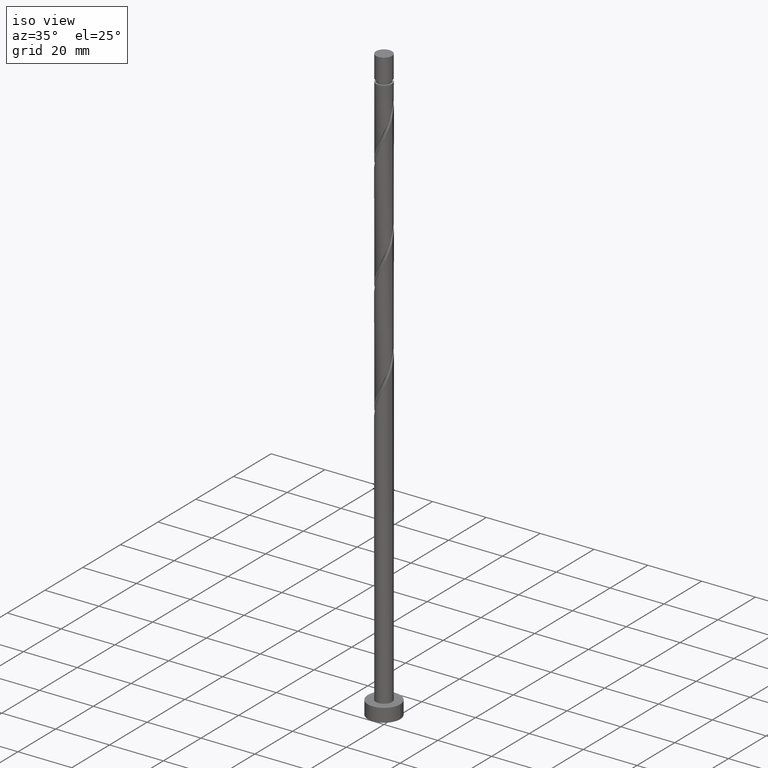
[diagram: clean part render]
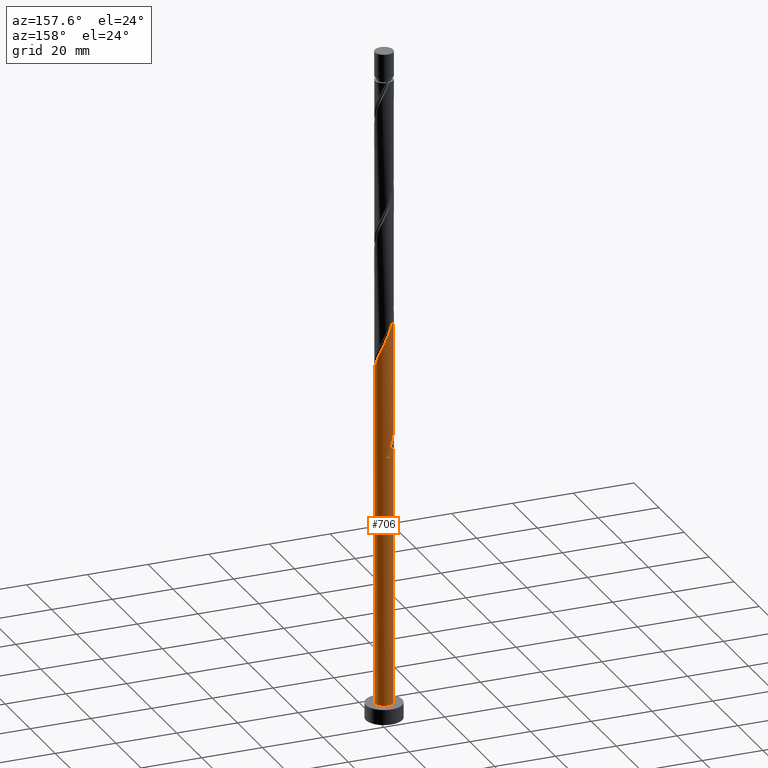
[diagram: tour spotlight — one face highlighted and labeled with its STEP entity id]
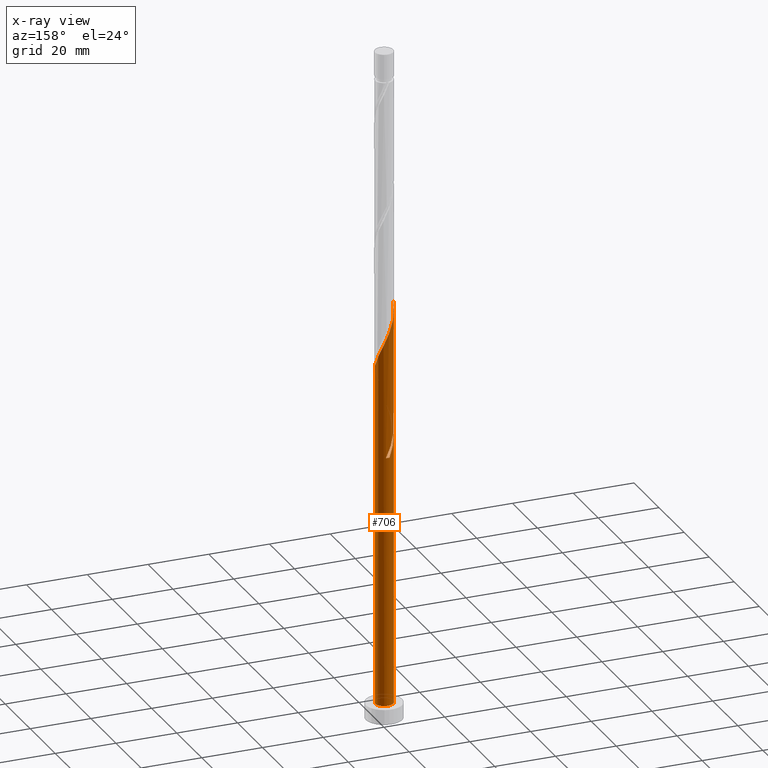
[diagram: x-ray of the same camera — body ghosted, this tour face saturated]
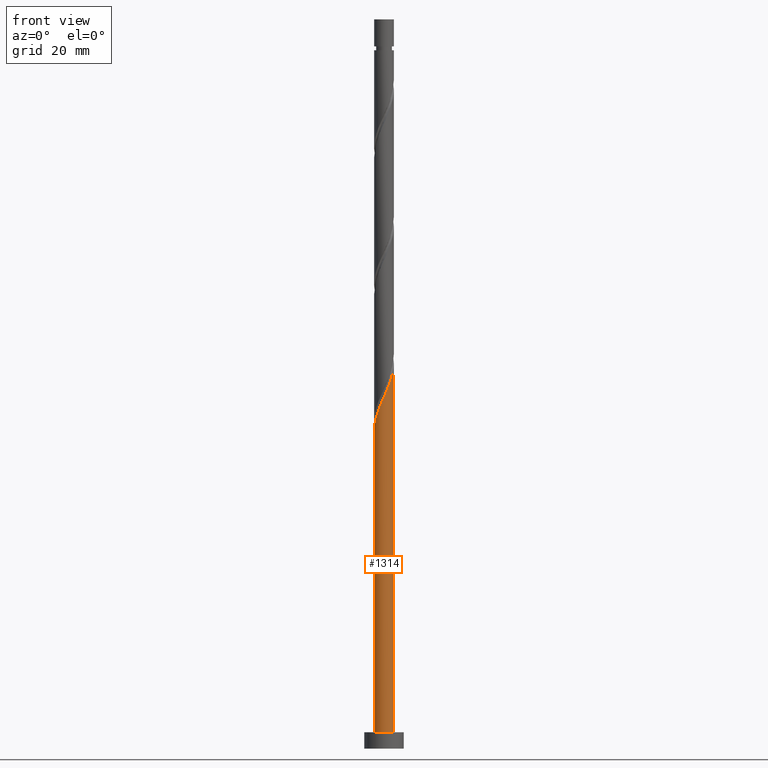
[diagram: tour spotlight — one face highlighted and labeled with its STEP entity id]
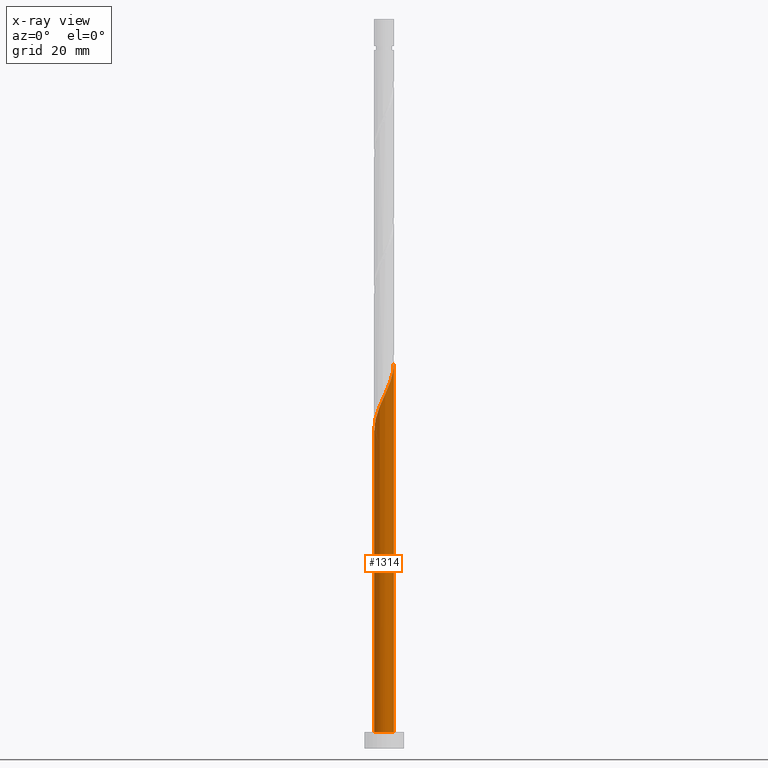
[diagram: x-ray of the same camera — body ghosted, this tour face saturated]
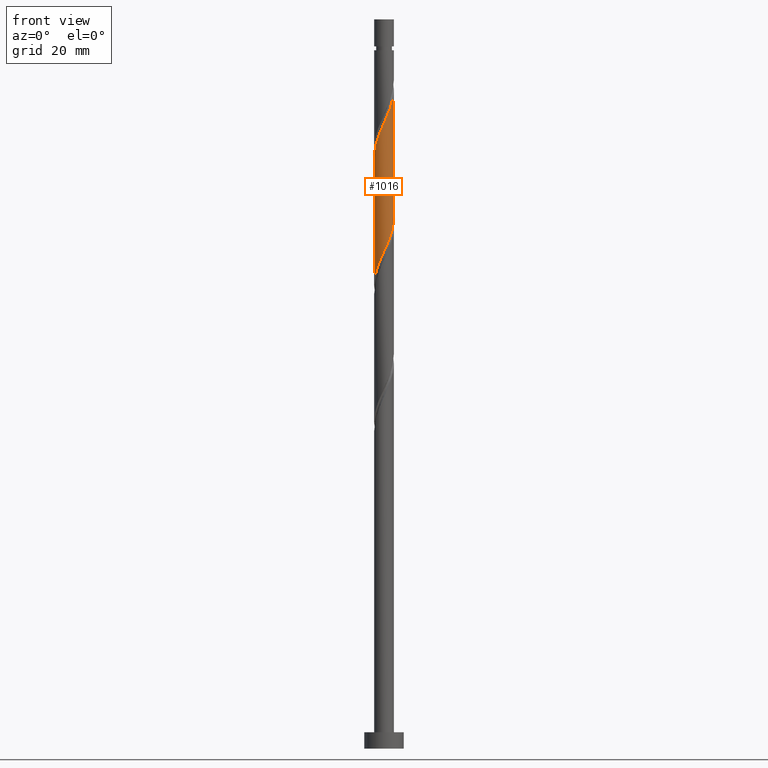
[diagram: tour spotlight — one face highlighted and labeled with its STEP entity id]
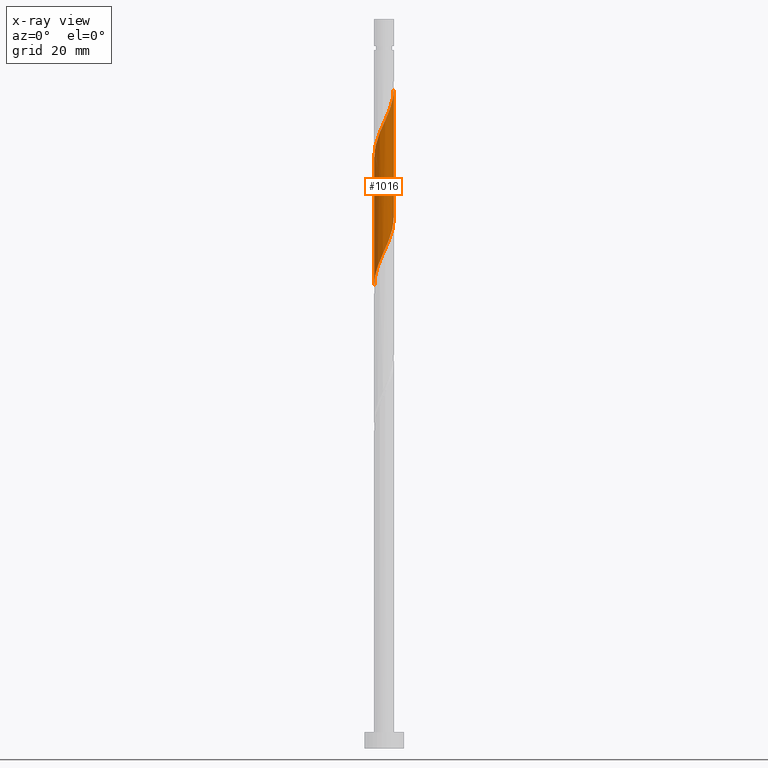
[diagram: x-ray of the same camera — body ghosted, this tour face saturated]
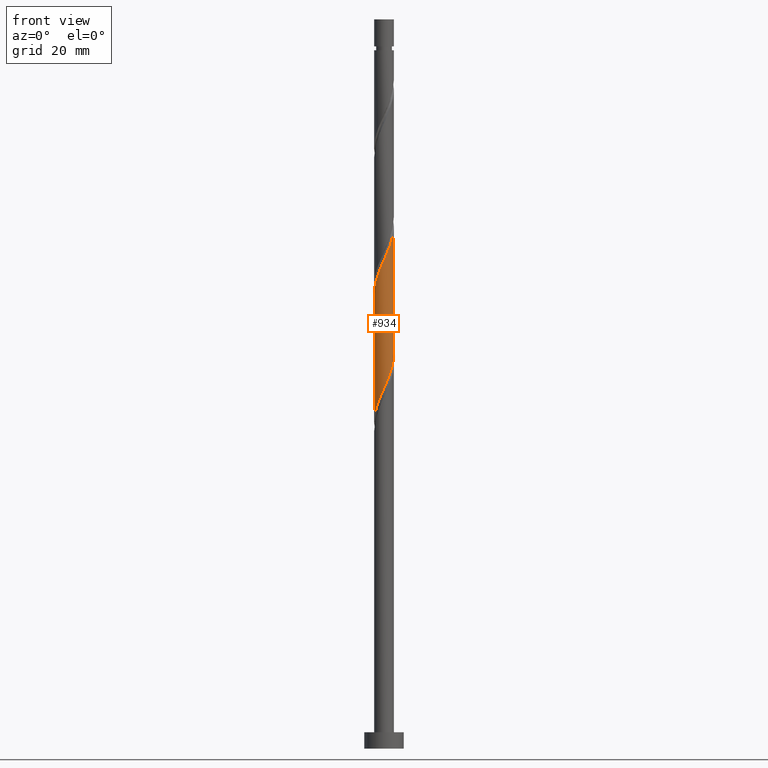
[diagram: tour spotlight — one face highlighted and labeled with its STEP entity id]
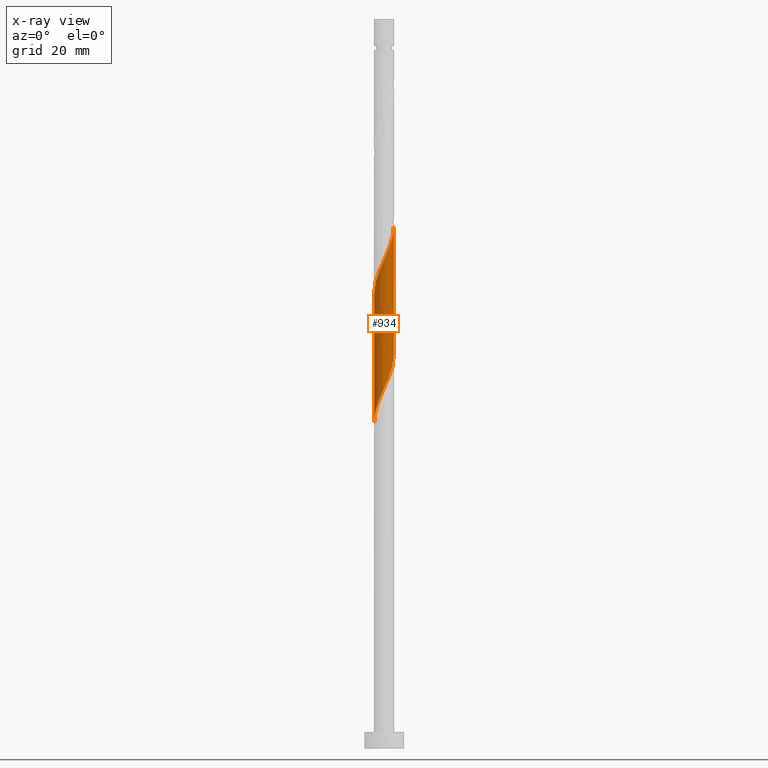
[diagram: x-ray of the same camera — body ghosted, this tour face saturated]
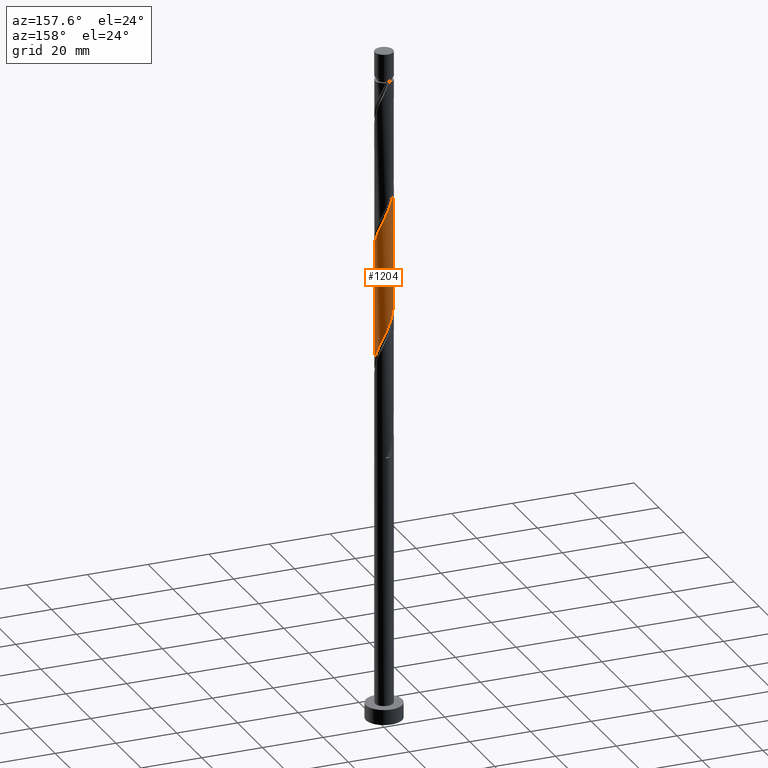
[diagram: tour spotlight — one face highlighted and labeled with its STEP entity id]
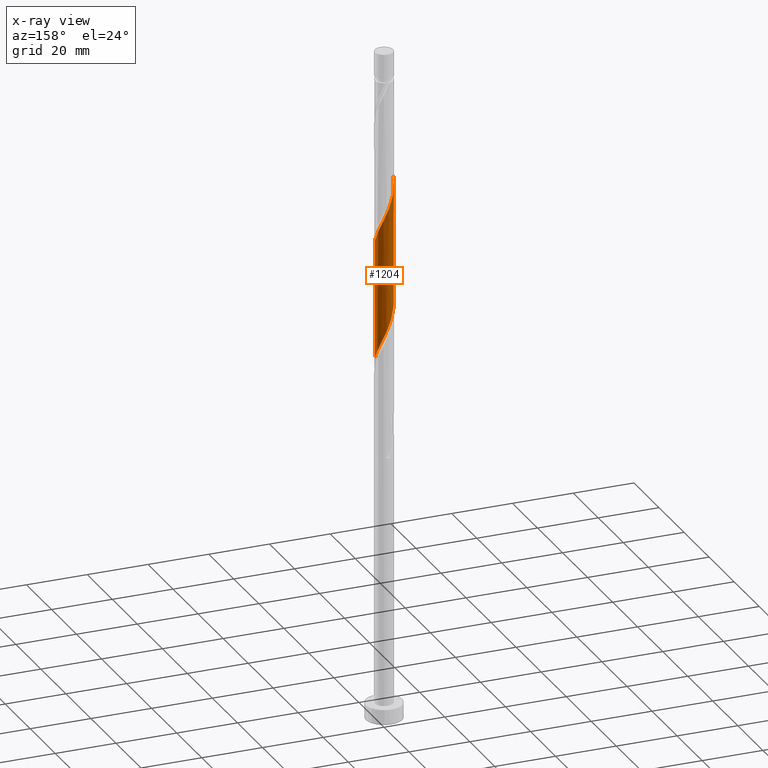
[diagram: x-ray of the same camera — body ghosted, this tour face saturated]
A machine part: a face-by-face anatomy tour. The part has 21 B-rep faces; the first image is the clean iso view, then the 5 largest visible faces are spotlighted one at a time (largest first), each with its STEP entity span.

Face 1 — auxiliary view, entity #706. An x-ray twin of the same camera follows (body ghosted, this face saturated) — the face is partly hidden behind the body. In plain terms, the highlighted cylindrical surface (edge-blend (fillet) strip) has radius 3 mm, axis along (-0, -0, -1).
Definition (entity closure, byte-faithful):
#1 = CARTESIAN_POINT ( 'NONE',  ( 0.8376755528275025009, 2.880676946169974606, 126.0351902960103700 ) ) ;
#9 = CARTESIAN_POINT ( 'NONE',  ( -3.000000000000000444, 0.000000000000000000, 222.0000000000000000 ) ) ;
#17 = CARTESIAN_POINT ( 'NONE',  ( 2.846604600309534661, 0.9470175550097423844, 119.6249338857539755 ) ) ;
#27 = CARTESIAN_POINT ( 'NONE',  ( 3.000000000000004885, 5.982375413314625923E-16, 117.4957299585800143 ) ) ;
#37 = CIRCLE ( 'NONE', #316, 3.000000000000000444 ) ;
#49 = CARTESIAN_POINT ( 'NONE',  ( -1.817997620638345913, 2.414036937049628406, 93.18262619344626785 ) ) ;
#63 = CARTESIAN_POINT ( 'NONE',  ( -2.999999999999999112, -6.072111044514400680E-15, 99.31824037703046315 ) ) ;
#68 = VERTEX_POINT ( 'NONE', #755 ) ;
#73 = CARTESIAN_POINT ( 'NONE',  ( -0.5969924622639725120, 2.940000000000005720, 87.57365183447191725 ) ) ;
#76 = CARTESIAN_POINT ( 'NONE',  ( -2.177300491905833191, 2.095722369502529325, 91.58006209088216565 ) ) ;
#87 = CARTESIAN_POINT ( 'NONE',  ( 2.537251308848763820, 1.600736016882631008, 121.2274979883180634 ) ) ;
#126 = CIRCLE ( 'NONE', #549, 3.000000000000000444 ) ;
#133 = CARTESIAN_POINT ( 'NONE',  ( -2.758702937603747074, 1.178795190886224198, 93.98390824472834026 ) ) ;
#143 = VERTEX_POINT ( 'NONE', #483 ) ;
#152 = DIRECTION ( 'NONE',  ( -0.000000000000000000, -0.000000000000000000, -1.000000000000000000 ) ) ;
#188 = LINE ( 'NONE', #1563, #1636 ) ;
#193 = CARTESIAN_POINT ( 'NONE',  ( 0.000000000000000000, 0.000000000000000000, 87.57365183447191725 ) ) ;
#200 = CARTESIAN_POINT ( 'NONE',  ( -1.187453060654100501, 2.778964719248851356, 91.58006209088216565 ) ) ;
#215 = CARTESIAN_POINT ( 'NONE',  ( -1.894896698789863665, 2.325804484670909389, 90.77878003960013586 ) ) ;
#246 = CYLINDRICAL_SURFACE ( 'NONE', #1402, 3.000000000000000444 ) ;
#274 = CARTESIAN_POINT ( 'NONE',  ( -1.283232999305657263, 2.711699295551230016, 130.8428826037026909 ) ) ;
#284 = CARTESIAN_POINT ( 'NONE',  ( 1.502725340646228647, 2.596500828149243656, 124.4326261934462536 ) ) ;
#295 = CARTESIAN_POINT ( 'NONE',  ( -1.894896698789863665, 2.325804484670909389, 132.4454467062668073 ) ) ;
#316 = AXIS2_PLACEMENT_3D ( 'NONE', #1202, #1629, #784 ) ;
#351 = CARTESIAN_POINT ( 'NONE',  ( -2.846604600309527111, 0.9470175550097436057, 97.18903644985653045 ) ) ;
#418 = CARTESIAN_POINT ( 'NONE',  ( -0.9539730929374198309, 2.867511991263172799, 130.0416005524206469 ) ) ;
#437 = ORIENTED_EDGE ( 'NONE', *, *, #1415, .F. ) ;
#438 = CARTESIAN_POINT ( 'NONE',  ( -0.5969924622639726230, 2.940000000000005720, 129.2403185011386029 ) ) ;
#452 = CARTESIAN_POINT ( 'NONE',  ( 2.731615850633954068, 1.292657931028937224, 120.4262159370360195 ) ) ;
#480 = CARTESIAN_POINT ( 'NONE',  ( -3.000000000000004441, 0.2437693156111475079, 137.7893625545649741 ) ) ;
#483 = CARTESIAN_POINT ( 'NONE',  ( 3.000000000000004885, 5.982375413314625923E-16, 117.4957299585800143 ) ) ;
#501 = CARTESIAN_POINT ( 'NONE',  ( -2.960644198141486605, 0.4843407189274826496, 137.2531390139590712 ) ) ;
#502 = CARTESIAN_POINT ( 'NONE',  ( -1.502725340646223762, 2.596500828149240547, 92.38134414216425228 ) ) ;
#506 = CARTESIAN_POINT ( 'NONE',  ( -2.758702937603747074, 1.178795190886224198, 135.6505749113949832 ) ) ;
#511 = VERTEX_POINT ( 'NONE', #1228 ) ;
#512 = CARTESIAN_POINT ( 'NONE',  ( -2.990523579387028619, 0.2382618751084440989, 98.79160055242063265 ) ) ;
#549 = AXIS2_PLACEMENT_3D ( 'NONE', #193, #1178, #1325 ) ;
#553 = EDGE_CURVE ( 'NONE', #1654, #1619, #126, .T. ) ;
#571 = CARTESIAN_POINT ( 'NONE',  ( -1.612492905673894361, 2.555886599839288120, 131.6441646549847349 ) ) ;
#583 = CARTESIAN_POINT ( 'NONE',  ( 3.000000000000004441, 0.1193193910103063360, 117.7599008742129740 ) ) ;
#607 = EDGE_CURVE ( 'NONE', #143, #1739, #839, .T. ) ;
#619 = CARTESIAN_POINT ( 'NONE',  ( -0.4878980450008949532, 2.982389173091087198, 89.97749798831804924 ) ) ;
#626 = CARTESIAN_POINT ( 'NONE',  ( -2.615571287713478466, 1.513762372691146663, 134.8492928601129108 ) ) ;
#630 = CARTESIAN_POINT ( 'NONE',  ( 0.5969924622639735112, 2.939999999999999947, 87.57365183447191725 ) ) ;
#645 = CARTESIAN_POINT ( 'NONE',  ( 0.2400118315905267752, 3.012488008736830647, 88.37493388575394704 ) ) ;
#648 = CARTESIAN_POINT ( 'NONE',  ( -2.396435889809655606, 1.804742371096838216, 92.38134414216423806 ) ) ;
#656 = CARTESIAN_POINT ( 'NONE',  ( 2.342886767063573572, 1.908814102736323237, 122.0287800396001217 ) ) ;
#687 = LINE ( 'NONE', #1658, #1815 ) ;
#703 = CARTESIAN_POINT ( 'NONE',  ( 0.1239431067051879054, 2.997438590913966472, 127.6377543985744722 ) ) ;
#706 = ADVANCED_FACE ( 'NONE', ( #1358 ), #246, .T. ) ;
#727 = DIRECTION ( 'NONE',  ( -0.000000000000000000, -0.000000000000000000, -1.000000000000000000 ) ) ;
#732 =( BOUNDED_CURVE ( )  B_SPLINE_CURVE ( 2, ( #778, #1503, #1337, #1067, #215, #76, #648, #1531, #133, #1542, #1792, #1682, #1822 ),
 .UNSPECIFIED., .F., .T. ) 
 B_SPLINE_CURVE_WITH_KNOTS ( ( 3, 2, 2, 2, 2, 2, 3 ),
 ( 0.000000000000000000, 0.009615384615384582959, 0.01923076923076927347, 0.02884615384615385469, 0.03846153846153842898, 0.04807692307692312816, 0.05452716259738321636 ),
 .UNSPECIFIED. ) 
 CURVE ( )  GEOMETRIC_REPRESENTATION_ITEM ( )  RATIONAL_B_SPLINE_CURVE ( ( 0.9090909090909354839, 0.9024626128164390249, 0.9090909090909354839, 0.9024626128164390249, 0.9090909090909354839, 0.9024626128164390249, 0.9090909090909354839, 0.9024626128164390249, 0.9090909090909354839, 0.9024626128164390249, 0.9090909090909354839, 0.9046444828382956826, 0.9061636035682902879 ) ) 
 REPRESENTATION_ITEM ( '' )  );
#735 = CARTESIAN_POINT ( 'NONE',  ( 1.817997620638352574, 2.414036937049630627, 123.6313441421641954 ) ) ;
#755 = CARTESIAN_POINT ( 'NONE',  ( -2.999999999999999112, -6.072111044514400680E-15, 99.31824037703046315 ) ) ;
#761 = CARTESIAN_POINT ( 'NONE',  ( 0.5969924622639735112, 2.939999999999999947, 87.57365183447191725 ) ) ;
#769 = CARTESIAN_POINT ( 'NONE',  ( -3.000000000000004885, -1.017003820263486703E-15, 138.3290632919133145 ) ) ;
#778 = CARTESIAN_POINT ( 'NONE',  ( -0.5969924622639726230, 2.940000000000005720, 87.57365183447191725 ) ) ;
#783 = EDGE_LOOP ( 'NONE', ( #878, #1649, #1146, #1600, #1435, #1418, #1166, #437 ) ) ;
#784 = DIRECTION ( 'NONE',  ( 1.000000000000000000, 0.000000000000000000, 0.000000000000000000 ) ) ;
#832 = CARTESIAN_POINT ( 'NONE',  ( 0.000000000000000000, 0.000000000000000000, 222.0000000000000000 ) ) ;
#833 = CARTESIAN_POINT ( 'NONE',  ( 0.4878980450008980063, 2.982389173091094747, 126.8364723472924567 ) ) ;
#839 =( BOUNDED_CURVE ( )  B_SPLINE_CURVE ( 2, ( #27, #583, #880, #1710, #17, #452, #87, #656, #1220, #735, #284, #1131, #1, #833, #703, #1683, #438, #418, #274, #571, #295, #864, #1424, #626, #506, #1011, #501, #480, #1696 ),
 .UNSPECIFIED., .F., .T. ) 
 B_SPLINE_CURVE_WITH_KNOTS ( ( 3, 2, 2, 2, 2, 2, 2, 2, 2, 2, 2, 2, 2, 2, 3 ),
 ( 0.1795271625973833829, 0.1826923076923077094, 0.1923076923076922906, 0.2019230769230768718, 0.2115384615384615641, 0.2211538461538461453, 0.2307692307692307265, 0.2403846153846154188, 0.2500000000000000000, 0.2596153846153845812, 0.2692307692307692735, 0.2788461538461538547, 0.2884615384615384359, 0.2980769230769231282, 0.3045271625973830498 ),
 .UNSPECIFIED. ) 
 CURVE ( )  GEOMETRIC_REPRESENTATION_ITEM ( )  RATIONAL_B_SPLINE_CURVE ( ( 0.9061636035682902879, 0.9069090390690790482, 0.9090909090909354839, 0.9024626128164390249, 0.9090909090909354839, 0.9024626128164390249, 0.9090909090909354839, 0.9024626128164390249, 0.9090909090909354839, 0.9024626128164390249, 0.9090909090909354839, 0.9024626128164390249, 0.9090909090909354839, 0.9024626128164390249, 0.9090909090909354839, 0.9024626128164390249, 0.9090909090909354839, 0.9024626128164390249, 0.9090909090909354839, 0.9024626128164390249, 0.9090909090909354839, 0.9024626128164390249, 0.9090909090909354839, 0.9024626128164390249, 0.9090909090909354839, 0.9024626128164390249, 0.9090909090909354839, 0.9046444828382957937, 0.9061636035682901769 ) ) 
 REPRESENTATION_ITEM ( '' )  );
#845 = EDGE_CURVE ( 'NONE', #1009, #511, #687, .T. ) ;
#864 = CARTESIAN_POINT ( 'NONE',  ( -2.177300491905833191, 2.095722369502529325, 133.2467287575488228 ) ) ;
#878 = ORIENTED_EDGE ( 'NONE', *, *, #607, .F. ) ;
#880 = CARTESIAN_POINT ( 'NONE',  ( 2.990523579387034392, 0.2382618751084419340, 118.0223697831898733 ) ) ;
#907 = CARTESIAN_POINT ( 'NONE',  ( -2.342886767063566023, 1.908814102736321461, 94.78519029601035584 ) ) ;
#915 = CARTESIAN_POINT ( 'NONE',  ( -2.731615850633948739, 1.292657931028936336, 96.38775439857445804 ) ) ;
#920 =( BOUNDED_CURVE ( )  B_SPLINE_CURVE ( 2, ( #63, #1319, #512, #1610, #351, #915, #1475, #907, #1481, #49, #502, #200, #1780, #619, #1072, #645, #630 ),
 .UNSPECIFIED., .F., .T. ) 
 B_SPLINE_CURVE_WITH_KNOTS ( ( 3, 2, 2, 2, 2, 2, 2, 2, 3 ),
 ( 0.9295271625973832164, 0.9326923076923077094, 0.9423076923076922906, 0.9519230769230768718, 0.9615384615384615641, 0.9711538461538461453, 0.9807692307692307265, 0.9903846153846154188, 1.000000000000000000 ),
 .UNSPECIFIED. ) 
 CURVE ( )  GEOMETRIC_REPRESENTATION_ITEM ( )  RATIONAL_B_SPLINE_CURVE ( ( 0.9061636035682822943, 0.9069090390690708325, 0.9090909090909273793, 0.9024626128164311423, 0.9090909090909273793, 0.9024626128164311423, 0.9090909090909273793, 0.9024626128164311423, 0.9090909090909273793, 0.9024626128164311423, 0.9090909090909273793, 0.9024626128164311423, 0.9090909090909273793, 0.9024626128164311423, 0.9090909090909273793, 0.9024626128164311423, 0.9090909090909273793 ) ) 
 REPRESENTATION_ITEM ( '' )  );
#1009 = VERTEX_POINT ( 'NONE', #1015 ) ;
#1011 = CARTESIAN_POINT ( 'NONE',  ( -2.901834587494015683, 0.8438280090813007339, 136.4518569626770272 ) ) ;
#1015 = CARTESIAN_POINT ( 'NONE',  ( -3.000000000000005773, 7.358321758376993336E-15, 96.66239662524669995 ) ) ;
#1038 = EDGE_CURVE ( 'NONE', #143, #1778, #188, .T. ) ;
#1067 = CARTESIAN_POINT ( 'NONE',  ( -1.612492905673894361, 2.555886599839288120, 89.97749798831804924 ) ) ;
#1072 = CARTESIAN_POINT ( 'NONE',  ( -0.1239431067051841862, 2.997438590913959811, 89.17621593703601945 ) ) ;
#1131 = CARTESIAN_POINT ( 'NONE',  ( 1.187453060654104497, 2.778964719248856685, 125.2339082447282834 ) ) ;
#1146 = ORIENTED_EDGE ( 'NONE', *, *, #1777, .T. ) ;
#1166 = ORIENTED_EDGE ( 'NONE', *, *, #1664, .F. ) ;
#1178 = DIRECTION ( 'NONE',  ( 0.000000000000000000, -0.000000000000000000, -1.000000000000000000 ) ) ;
#1202 = CARTESIAN_POINT ( 'NONE',  ( 0.000000000000000000, 0.000000000000000000, 5.000000000000000000 ) ) ;
#1208 = CARTESIAN_POINT ( 'NONE',  ( 3.000000000000000444, 3.673940397442060361E-16, 5.000000000000000000 ) ) ;
#1220 = CARTESIAN_POINT ( 'NONE',  ( 2.080442193850961630, 2.161425519892978819, 122.8300620908821799 ) ) ;
#1227 = EDGE_CURVE ( 'NONE', #1654, #1009, #732, .T. ) ;
#1228 = CARTESIAN_POINT ( 'NONE',  ( -3.000000000000000444, 0.000000000000000000, 5.000000000000000000 ) ) ;
#1251 = DIRECTION ( 'NONE',  ( -0.000000000000000000, -0.000000000000000000, -1.000000000000000000 ) ) ;
#1278 = LINE ( 'NONE', #9, #1732 ) ;
#1319 = CARTESIAN_POINT ( 'NONE',  ( -2.999999999999999556, 0.1193193910103018118, 99.05406946139750346 ) ) ;
#1325 = DIRECTION ( 'NONE',  ( -1.000000000000000000, 0.000000000000000000, 0.000000000000000000 ) ) ;
#1337 = CARTESIAN_POINT ( 'NONE',  ( -1.283232999305657263, 2.711699295551230016, 89.17621593703603367 ) ) ;
#1358 = FACE_OUTER_BOUND ( 'NONE', #783, .T. ) ;
#1375 = DIRECTION ( 'NONE',  ( -0.000000000000000000, -0.000000000000000000, -1.000000000000000000 ) ) ;
#1395 = DIRECTION ( 'NONE',  ( -1.000000000000000000, 0.000000000000000000, 0.000000000000000000 ) ) ;
#1402 = AXIS2_PLACEMENT_3D ( 'NONE', #832, #1375, #1395 ) ;
#1415 = EDGE_CURVE ( 'NONE', #1739, #68, #1278, .T. ) ;
#1418 = ORIENTED_EDGE ( 'NONE', *, *, #553, .T. ) ;
#1424 = CARTESIAN_POINT ( 'NONE',  ( -2.396435889809655606, 1.804742371096838216, 134.0480108088308953 ) ) ;
#1435 = ORIENTED_EDGE ( 'NONE', *, *, #1227, .F. ) ;
#1475 = CARTESIAN_POINT ( 'NONE',  ( -2.537251308848758047, 1.600736016882629675, 95.58647234729241404 ) ) ;
#1481 = CARTESIAN_POINT ( 'NONE',  ( -2.080442193850956745, 2.161425519892975711, 93.98390824472834026 ) ) ;
#1503 = CARTESIAN_POINT ( 'NONE',  ( -0.9539730929374198309, 2.867511991263172799, 88.37493388575397546 ) ) ;
#1531 = CARTESIAN_POINT ( 'NONE',  ( -2.615571287713478466, 1.513762372691146663, 93.18262619344626785 ) ) ;
#1542 = CARTESIAN_POINT ( 'NONE',  ( -2.901834587494015683, 0.8438280090813007339, 94.78519029601037005 ) ) ;
#1563 = CARTESIAN_POINT ( 'NONE',  ( 3.000000000000000444, 3.673940397442060361E-16, 222.0000000000000000 ) ) ;
#1600 = ORIENTED_EDGE ( 'NONE', *, *, #845, .F. ) ;
#1610 = CARTESIAN_POINT ( 'NONE',  ( -2.961593349985106816, 0.6013771789905504317, 97.99031850113860287 ) ) ;
#1619 = VERTEX_POINT ( 'NONE', #761 ) ;
#1629 = DIRECTION ( 'NONE',  ( 0.000000000000000000, 0.000000000000000000, 1.000000000000000000 ) ) ;
#1636 = VECTOR ( 'NONE', #727, 1000.000000000000000 ) ;
#1649 = ORIENTED_EDGE ( 'NONE', *, *, #1038, .T. ) ;
#1654 = VERTEX_POINT ( 'NONE', #73 ) ;
#1658 = CARTESIAN_POINT ( 'NONE',  ( -3.000000000000000444, 0.000000000000000000, 222.0000000000000000 ) ) ;
#1664 = EDGE_CURVE ( 'NONE', #68, #1619, #920, .T. ) ;
#1682 = CARTESIAN_POINT ( 'NONE',  ( -3.000000000000004441, 0.2437693156111412074, 96.12269588789835950 ) ) ;
#1683 = CARTESIAN_POINT ( 'NONE',  ( -0.2400118315905249711, 3.012488008736836864, 128.4390364498565305 ) ) ;
#1696 = CARTESIAN_POINT ( 'NONE',  ( -3.000000000000004885, -1.017003820263486703E-15, 138.3290632919133145 ) ) ;
#1710 = CARTESIAN_POINT ( 'NONE',  ( 2.961593349985112589, 0.6013771789905498766, 118.8236518344719173 ) ) ;
#1732 = VECTOR ( 'NONE', #152, 1000.000000000000000 ) ;
#1739 = VERTEX_POINT ( 'NONE', #769 ) ;
#1777 = EDGE_CURVE ( 'NONE', #1778, #511, #37, .T. ) ;
#1778 = VERTEX_POINT ( 'NONE', #1208 ) ;
#1780 = CARTESIAN_POINT ( 'NONE',  ( -0.8376755528274981710, 2.880676946169970609, 90.77878003960015008 ) ) ;
#1792 = CARTESIAN_POINT ( 'NONE',  ( -2.960644198141486605, 0.4843407189274826496, 95.58647234729244246 ) ) ;
#1815 = VECTOR ( 'NONE', #1251, 1000.000000000000000 ) ;
#1822 = CARTESIAN_POINT ( 'NONE',  ( -3.000000000000005773, 7.358321758376993336E-15, 96.66239662524668574 ) ) ;

Face 2 — front view, entity #1314. An x-ray twin of the same camera follows (body ghosted, this face saturated) — the face is partly hidden behind the body. In plain terms, the highlighted cylindrical surface (edge-blend (fillet) strip) has radius 3 mm, axis along (-0, -0, -1).
Definition (entity closure, byte-faithful):
#32 = CARTESIAN_POINT ( 'NONE',  ( 0.000000000000000000, 0.000000000000000000, 5.000000000000000000 ) ) ;
#67 = CARTESIAN_POINT ( 'NONE',  ( 2.901834587494014794, -0.8438280090813025103, 115.6185236293436844 ) ) ;
#86 = CARTESIAN_POINT ( 'NONE',  ( -2.342886767063573128, -1.908814102736323903, 101.1954467062667931 ) ) ;
#143 = VERTEX_POINT ( 'NONE', #483 ) ;
#188 = LINE ( 'NONE', #1563, #1636 ) ;
#261 = ORIENTED_EDGE ( 'NONE', *, *, #879, .T. ) ;
#361 = CARTESIAN_POINT ( 'NONE',  ( -2.537251308848763820, -1.600736016882630786, 100.3941646549847491 ) ) ;
#370 = CARTESIAN_POINT ( 'NONE',  ( -2.080442193850961630, -2.161425519892979263, 101.9967287575488513 ) ) ;
#396 = DIRECTION ( 'NONE',  ( -1.000000000000000000, 0.000000000000000000, 0.000000000000000000 ) ) ;
#483 = CARTESIAN_POINT ( 'NONE',  ( 3.000000000000004885, 5.982375413314625923E-16, 117.4957299585800143 ) ) ;
#487 = CARTESIAN_POINT ( 'NONE',  ( 1.894896698789863443, -2.325804484670909389, 111.6121133729334503 ) ) ;
#511 = VERTEX_POINT ( 'NONE', #1228 ) ;
#514 = CARTESIAN_POINT ( 'NONE',  ( 1.283232999305656596, -2.711699295551230904, 110.0095492703693481 ) ) ;
#622 = CARTESIAN_POINT ( 'NONE',  ( -2.961593349985112589, -0.6013771789905503207, 97.99031850113858866 ) ) ;
#655 = CARTESIAN_POINT ( 'NONE',  ( -0.8376755528275009466, -2.880676946169974606, 105.2018569626770272 ) ) ;
#658 =( BOUNDED_CURVE ( )  B_SPLINE_CURVE ( 2, ( #918, #1061, #1637, #622, #1189, #1218, #361, #86, #370, #1773, #1631, #1625, #655, #786, #1752, #1616, #1495, #926, #514, #771, #487, #1328, #1470, #1346, #1357, #67, #1783, #1084, #1485 ),
 .UNSPECIFIED., .F., .T. ) 
 B_SPLINE_CURVE_WITH_KNOTS ( ( 3, 2, 2, 2, 2, 2, 2, 2, 2, 2, 2, 2, 2, 2, 3 ),
 ( 0.05452716259738321636, 0.05769230769230770939, 0.06730769230769229061, 0.07692307692307687184, 0.08653846153846156408, 0.09615384615384614531, 0.1057692307692307265, 0.1153846153846154188, 0.1250000000000000000, 0.1346153846153845812, 0.1442307692307692735, 0.1538461538461538547, 0.1634615384615384359, 0.1730769230769231282, 0.1795271625973833829 ),
 .UNSPECIFIED. ) 
 CURVE ( )  GEOMETRIC_REPRESENTATION_ITEM ( )  RATIONAL_B_SPLINE_CURVE ( ( 0.9061636035682902879, 0.9069090390690788261, 0.9090909090909354839, 0.9024626128164390249, 0.9090909090909354839, 0.9024626128164390249, 0.9090909090909354839, 0.9024626128164390249, 0.9090909090909354839, 0.9024626128164390249, 0.9090909090909354839, 0.9024626128164390249, 0.9090909090909354839, 0.9024626128164390249, 0.9090909090909354839, 0.9024626128164390249, 0.9090909090909354839, 0.9024626128164390249, 0.9090909090909354839, 0.9024626128164390249, 0.9090909090909354839, 0.9024626128164390249, 0.9090909090909354839, 0.9024626128164390249, 0.9090909090909354839, 0.9024626128164390249, 0.9090909090909354839, 0.9046444828382954606, 0.9061636035682902879 ) ) 
 REPRESENTATION_ITEM ( '' )  );
#687 = LINE ( 'NONE', #1658, #1815 ) ;
#727 = DIRECTION ( 'NONE',  ( -0.000000000000000000, -0.000000000000000000, -1.000000000000000000 ) ) ;
#771 = CARTESIAN_POINT ( 'NONE',  ( 1.612492905673893251, -2.555886599839288564, 110.8108313216514205 ) ) ;
#786 = CARTESIAN_POINT ( 'NONE',  ( -0.4878980450008977843, -2.982389173091094747, 106.0031390139590997 ) ) ;
#844 = DIRECTION ( 'NONE',  ( -0.000000000000000000, -0.000000000000000000, -1.000000000000000000 ) ) ;
#845 = EDGE_CURVE ( 'NONE', #1009, #511, #687, .T. ) ;
#879 = EDGE_CURVE ( 'NONE', #511, #1778, #1458, .T. ) ;
#913 = ORIENTED_EDGE ( 'NONE', *, *, #1152, .F. ) ;
#918 = CARTESIAN_POINT ( 'NONE',  ( -3.000000000000005773, 7.358321758376993336E-15, 96.66239662524668574 ) ) ;
#926 = CARTESIAN_POINT ( 'NONE',  ( 0.9539730929374192758, -2.867511991263172799, 109.2082672190872756 ) ) ;
#1009 = VERTEX_POINT ( 'NONE', #1015 ) ;
#1015 = CARTESIAN_POINT ( 'NONE',  ( -3.000000000000005773, 7.358321758376993336E-15, 96.66239662524669995 ) ) ;
#1038 = EDGE_CURVE ( 'NONE', #143, #1778, #188, .T. ) ;
#1061 = CARTESIAN_POINT ( 'NONE',  ( -3.000000000000005773, -0.1193193910103006738, 96.92656754087964543 ) ) ;
#1084 = CARTESIAN_POINT ( 'NONE',  ( 3.000000000000006217, -0.2437693156111349624, 116.9560292212317307 ) ) ;
#1100 = CARTESIAN_POINT ( 'NONE',  ( 0.000000000000000000, 0.000000000000000000, 222.0000000000000000 ) ) ;
#1107 = AXIS2_PLACEMENT_3D ( 'NONE', #1100, #844, #396 ) ;
#1127 = CYLINDRICAL_SURFACE ( 'NONE', #1107, 3.000000000000000444 ) ;
#1152 = EDGE_CURVE ( 'NONE', #1009, #143, #658, .T. ) ;
#1189 = CARTESIAN_POINT ( 'NONE',  ( -2.846604600309533772, -0.9470175550097439388, 98.79160055242063265 ) ) ;
#1208 = CARTESIAN_POINT ( 'NONE',  ( 3.000000000000000444, 3.673940397442060361E-16, 5.000000000000000000 ) ) ;
#1218 = CARTESIAN_POINT ( 'NONE',  ( -2.731615850633954068, -1.292657931028938112, 99.59288260370264823 ) ) ;
#1228 = CARTESIAN_POINT ( 'NONE',  ( -3.000000000000000444, 0.000000000000000000, 5.000000000000000000 ) ) ;
#1251 = DIRECTION ( 'NONE',  ( -0.000000000000000000, -0.000000000000000000, -1.000000000000000000 ) ) ;
#1256 = AXIS2_PLACEMENT_3D ( 'NONE', #32, #1434, #1574 ) ;
#1314 = ADVANCED_FACE ( 'NONE', ( #1812 ), #1127, .T. ) ;
#1328 = CARTESIAN_POINT ( 'NONE',  ( 2.177300491905833191, -2.095722369502529325, 112.4133954242155085 ) ) ;
#1346 = CARTESIAN_POINT ( 'NONE',  ( 2.615571287713477577, -1.513762372691147995, 114.0159595267796107 ) ) ;
#1357 = CARTESIAN_POINT ( 'NONE',  ( 2.758702937603747074, -1.178795190886224198, 114.8172415780616546 ) ) ;
#1434 = DIRECTION ( 'NONE',  ( 0.000000000000000000, 0.000000000000000000, 1.000000000000000000 ) ) ;
#1458 = CIRCLE ( 'NONE', #1256, 3.000000000000000444 ) ;
#1470 = CARTESIAN_POINT ( 'NONE',  ( 2.396435889809655162, -1.804742371096838882, 113.2146774754975382 ) ) ;
#1485 = CARTESIAN_POINT ( 'NONE',  ( 3.000000000000004885, 5.982375413314625923E-16, 117.4957299585800143 ) ) ;
#1495 = CARTESIAN_POINT ( 'NONE',  ( 0.5969924622639728451, -2.940000000000005720, 108.4069851678052601 ) ) ;
#1504 = ORIENTED_EDGE ( 'NONE', *, *, #1038, .F. ) ;
#1563 = CARTESIAN_POINT ( 'NONE',  ( 3.000000000000000444, 3.673940397442060361E-16, 222.0000000000000000 ) ) ;
#1567 = ORIENTED_EDGE ( 'NONE', *, *, #845, .T. ) ;
#1574 = DIRECTION ( 'NONE',  ( 1.000000000000000000, 0.000000000000000000, 0.000000000000000000 ) ) ;
#1616 = CARTESIAN_POINT ( 'NONE',  ( 0.2400118315905253596, -3.012488008736836864, 107.6057031165231592 ) ) ;
#1625 = CARTESIAN_POINT ( 'NONE',  ( -1.187453060654103831, -2.778964719248856685, 104.4005749113949690 ) ) ;
#1631 = CARTESIAN_POINT ( 'NONE',  ( -1.502725340646227981, -2.596500828149244100, 103.5992928601129393 ) ) ;
#1636 = VECTOR ( 'NONE', #727, 1000.000000000000000 ) ;
#1637 = CARTESIAN_POINT ( 'NONE',  ( -2.990523579387034392, -0.2382618751084429887, 97.18903644985653045 ) ) ;
#1658 = CARTESIAN_POINT ( 'NONE',  ( -3.000000000000000444, 0.000000000000000000, 222.0000000000000000 ) ) ;
#1752 = CARTESIAN_POINT ( 'NONE',  ( -0.1239431067051861707, -2.997438590913966472, 106.8044210652411437 ) ) ;
#1773 = CARTESIAN_POINT ( 'NONE',  ( -1.817997620638350798, -2.414036937049632403, 102.7980108088308953 ) ) ;
#1778 = VERTEX_POINT ( 'NONE', #1208 ) ;
#1783 = CARTESIAN_POINT ( 'NONE',  ( 2.960644198141486605, -0.4843407189274828717, 116.4198056806257711 ) ) ;
#1808 = EDGE_LOOP ( 'NONE', ( #1504, #913, #1567, #261 ) ) ;
#1812 = FACE_OUTER_BOUND ( 'NONE', #1808, .T. ) ;
#1815 = VECTOR ( 'NONE', #1251, 1000.000000000000000 ) ;

Face 3 — front view, entity #1016. An x-ray twin of the same camera follows (body ghosted, this face saturated) — the face is partly hidden behind the body. In plain terms, the highlighted cylindrical surface (edge-blend (fillet) strip) has radius 3 mm, axis along (-0, -0, -1).
Definition (entity closure, byte-faithful):
#81 = EDGE_LOOP ( 'NONE', ( #1324, #1317, #644, #1115 ) ) ;
#104 = VERTEX_POINT ( 'NONE', #910 ) ;
#115 = CARTESIAN_POINT ( 'NONE',  ( -2.961593349985112589, -0.6013771789905503207, 181.3236518344719173 ) ) ;
#121 = CARTESIAN_POINT ( 'NONE',  ( 2.731615850633948739, -1.292657931028935892, 158.8877543985744012 ) ) ;
#125 = CARTESIAN_POINT ( 'NONE',  ( -2.846604600309533772, -0.9470175550097439388, 182.1249338857539612 ) ) ;
#136 = CARTESIAN_POINT ( 'NONE',  ( 1.894896698789863443, -2.325804484670909389, 194.9454467062668357 ) ) ;
#145 = CARTESIAN_POINT ( 'NONE',  ( -2.990523579387034392, -0.2382618751084429887, 180.5223697831898733 ) ) ;
#160 = EDGE_CURVE ( 'NONE', #1292, #1351, #1623, .T. ) ;
#194 = DIRECTION ( 'NONE',  ( -0.000000000000000000, -0.000000000000000000, -1.000000000000000000 ) ) ;
#219 = CARTESIAN_POINT ( 'NONE',  ( -2.396435889809652942, -1.804742371096832887, 145.2659595267796249 ) ) ;
#232 = CARTESIAN_POINT ( 'NONE',  ( -2.999999999999999556, 2.303214534126151737E-15, 140.9849070436970919 ) ) ;
#239 = CARTESIAN_POINT ( 'NONE',  ( -1.894896698789861222, -2.325804484670903172, 146.8685236293437129 ) ) ;
#256 = CARTESIAN_POINT ( 'NONE',  ( 0.5969924622639728451, -2.940000000000005720, 191.7403185011386313 ) ) ;
#265 =( BOUNDED_CURVE ( )  B_SPLINE_CURVE ( 2, ( #405, #712, #731, #1558, #1420, #121, #1712, #306, #1680, #443, #1010, #1569, #1116, #1403, #1331, #1077, #929, #677, #1235, #1342, #239, #941, #219, #1363, #668, #1764, #1628, #971, #232 ),
 .UNSPECIFIED., .F., .T. ) 
 B_SPLINE_CURVE_WITH_KNOTS ( ( 3, 2, 2, 2, 2, 2, 2, 2, 2, 2, 2, 2, 2, 2, 3 ),
 ( 0.5545271625973833274, 0.5576923076923077094, 0.5673076923076922906, 0.5769230769230768718, 0.5865384615384615641, 0.5961538461538461453, 0.6057692307692307265, 0.6153846153846154188, 0.6250000000000000000, 0.6346153846153845812, 0.6442307692307692735, 0.6538461538461538547, 0.6634615384615384359, 0.6730769230769231282, 0.6795271625973832164 ),
 .UNSPECIFIED. ) 
 CURVE ( )  GEOMETRIC_REPRESENTATION_ITEM ( )  RATIONAL_B_SPLINE_CURVE ( ( 0.9061636035682822943, 0.9069090390690709436, 0.9090909090909273793, 0.9024626128164311423, 0.9090909090909273793, 0.9024626128164311423, 0.9090909090909273793, 0.9024626128164311423, 0.9090909090909273793, 0.9024626128164311423, 0.9090909090909273793, 0.9024626128164311423, 0.9090909090909273793, 0.9024626128164311423, 0.9090909090909273793, 0.9024626128164311423, 0.9090909090909273793, 0.9024626128164311423, 0.9090909090909273793, 0.9024626128164311423, 0.9090909090909273793, 0.9024626128164311423, 0.9090909090909273793, 0.9024626128164311423, 0.9090909090909273793, 0.9024626128164311423, 0.9090909090909273793, 0.9046444828382876890, 0.9061636035682822943 ) ) 
 REPRESENTATION_ITEM ( '' )  );
#266 = CARTESIAN_POINT ( 'NONE',  ( 2.960644198141486605, -0.4843407189274828717, 199.7531390139590428 ) ) ;
#306 = CARTESIAN_POINT ( 'NONE',  ( 2.342886767063566023, -1.908814102736322349, 157.2851902960103416 ) ) ;
#310 = CYLINDRICAL_SURFACE ( 'NONE', #725, 3.000000000000000444 ) ;
#342 = VECTOR ( 'NONE', #1334, 1000.000000000000000 ) ;
#399 = CARTESIAN_POINT ( 'NONE',  ( -2.080442193850961630, -2.161425519892979263, 185.3300620908821941 ) ) ;
#405 = CARTESIAN_POINT ( 'NONE',  ( 2.999999999999999556, -3.499689616789087966E-15, 161.8182403770304632 ) ) ;
#412 = EDGE_CURVE ( 'NONE', #1351, #104, #265, .T. ) ;
#430 = CARTESIAN_POINT ( 'NONE',  ( 3.000000000000005329, 1.989139824927113045E-15, 200.8290632919133714 ) ) ;
#443 = CARTESIAN_POINT ( 'NONE',  ( 1.817997620638345024, -2.414036937049629294, 155.6826261934462536 ) ) ;
#485 =( BOUNDED_CURVE ( )  B_SPLINE_CURVE ( 2, ( #1794, #555, #145, #115, #125, #815, #848, #997, #399, #1133, #976, #1120, #695, #967, #1407, #1111, #256, #1695, #1272, #1244, #136, #1533, #823, #1676, #705, #1832, #266, #573, #430 ),
 .UNSPECIFIED., .F., .T. ) 
 B_SPLINE_CURVE_WITH_KNOTS ( ( 3, 2, 2, 2, 2, 2, 2, 2, 2, 2, 2, 2, 2, 2, 3 ),
 ( 0.5545271625973833274, 0.5576923076923077094, 0.5673076923076922906, 0.5769230769230768718, 0.5865384615384615641, 0.5961538461538461453, 0.6057692307692308376, 0.6153846153846154188, 0.6250000000000000000, 0.6346153846153845812, 0.6442307692307691624, 0.6538461538461538547, 0.6634615384615384359, 0.6730769230769231282, 0.6795271625973834384 ),
 .UNSPECIFIED. ) 
 CURVE ( )  GEOMETRIC_REPRESENTATION_ITEM ( )  RATIONAL_B_SPLINE_CURVE ( ( 0.9061636035682903989, 0.9069090390690790482, 0.9090909090909354839, 0.9024626128164390249, 0.9090909090909354839, 0.9024626128164390249, 0.9090909090909354839, 0.9024626128164390249, 0.9090909090909354839, 0.9024626128164390249, 0.9090909090909354839, 0.9024626128164390249, 0.9090909090909354839, 0.9024626128164390249, 0.9090909090909354839, 0.9024626128164390249, 0.9090909090909354839, 0.9024626128164390249, 0.9090909090909354839, 0.9024626128164390249, 0.9090909090909354839, 0.9024626128164390249, 0.9090909090909354839, 0.9024626128164390249, 0.9090909090909354839, 0.9024626128164390249, 0.9090909090909354839, 0.9046444828382954606, 0.9061636035682902879 ) ) 
 REPRESENTATION_ITEM ( '' )  );
#555 = CARTESIAN_POINT ( 'NONE',  ( -3.000000000000005329, -0.1193193910103048788, 180.2599008742129740 ) ) ;
#573 = CARTESIAN_POINT ( 'NONE',  ( 3.000000000000006217, -0.2437693156111328807, 200.2893625545650025 ) ) ;
#644 = ORIENTED_EDGE ( 'NONE', *, *, #1727, .T. ) ;
#668 = CARTESIAN_POINT ( 'NONE',  ( -2.758702937603743077, -1.178795190886220201, 143.6633954242155369 ) ) ;
#677 = CARTESIAN_POINT ( 'NONE',  ( -0.9539730929374197199, -2.867511991263166582, 149.2723697831898448 ) ) ;
#695 = CARTESIAN_POINT ( 'NONE',  ( -0.8376755528275009466, -2.880676946169974606, 188.5351902960103700 ) ) ;
#705 = CARTESIAN_POINT ( 'NONE',  ( 2.758702937603747074, -1.178795190886224198, 198.1505749113949832 ) ) ;
#712 = CARTESIAN_POINT ( 'NONE',  ( 2.999999999999999112, -0.1193193910103075156, 161.5540694613974892 ) ) ;
#725 = AXIS2_PLACEMENT_3D ( 'NONE', #874, #1297, #1706 ) ;
#731 = CARTESIAN_POINT ( 'NONE',  ( 2.990523579387029063, -0.2382618751084458475, 161.2916005524207037 ) ) ;
#776 = CARTESIAN_POINT ( 'NONE',  ( 3.000000000000000444, 3.673940397442060361E-16, 222.0000000000000000 ) ) ;
#797 = EDGE_CURVE ( 'NONE', #854, #1292, #485, .T. ) ;
#815 = CARTESIAN_POINT ( 'NONE',  ( -2.731615850633954068, -1.292657931028938112, 182.9262159370359768 ) ) ;
#821 = CARTESIAN_POINT ( 'NONE',  ( 3.000000000000005329, 1.989139824927113045E-15, 200.8290632919133429 ) ) ;
#823 = CARTESIAN_POINT ( 'NONE',  ( 2.396435889809655162, -1.804742371096838882, 196.5480108088309237 ) ) ;
#848 = CARTESIAN_POINT ( 'NONE',  ( -2.537251308848763820, -1.600736016882630786, 183.7274979883180777 ) ) ;
#854 = VERTEX_POINT ( 'NONE', #1605 ) ;
#874 = CARTESIAN_POINT ( 'NONE',  ( 0.000000000000000000, 0.000000000000000000, 222.0000000000000000 ) ) ;
#910 = CARTESIAN_POINT ( 'NONE',  ( -2.999999999999999556, 2.303214534126151737E-15, 140.9849070436970919 ) ) ;
#929 = CARTESIAN_POINT ( 'NONE',  ( -0.5969924622639732892, -2.940000000000001279, 150.0736518344719457 ) ) ;
#941 = CARTESIAN_POINT ( 'NONE',  ( -2.177300491905828750, -2.095722369502523108, 146.0672415780616404 ) ) ;
#967 = CARTESIAN_POINT ( 'NONE',  ( -0.4878980450008977843, -2.982389173091094747, 189.3364723472924140 ) ) ;
#971 = CARTESIAN_POINT ( 'NONE',  ( -2.999999999999999112, -0.2437693156111396253, 141.5246077810454324 ) ) ;
#976 = CARTESIAN_POINT ( 'NONE',  ( -1.502725340646227981, -2.596500828149244100, 186.9326261934462536 ) ) ;
#997 = CARTESIAN_POINT ( 'NONE',  ( -2.342886767063573128, -1.908814102736323903, 184.5287800396000932 ) ) ;
#1003 = CARTESIAN_POINT ( 'NONE',  ( 2.999999999999999556, -3.499689616789087966E-15, 161.8182403770304632 ) ) ;
#1010 = CARTESIAN_POINT ( 'NONE',  ( 1.502725340646223096, -2.596500828149240547, 154.8813441421642381 ) ) ;
#1016 = ADVANCED_FACE ( 'NONE', ( #1043 ), #310, .T. ) ;
#1043 = FACE_OUTER_BOUND ( 'NONE', #81, .T. ) ;
#1049 = LINE ( 'NONE', #1467, #1286 ) ;
#1077 = CARTESIAN_POINT ( 'NONE',  ( -0.2400118315905274136, -3.012488008736830647, 150.8749338857539044 ) ) ;
#1111 = CARTESIAN_POINT ( 'NONE',  ( 0.2400118315905253596, -3.012488008736836864, 190.9390364498565305 ) ) ;
#1115 = ORIENTED_EDGE ( 'NONE', *, *, #412, .F. ) ;
#1116 = CARTESIAN_POINT ( 'NONE',  ( 0.8376755528274978380, -2.880676946169970609, 153.2787800396001217 ) ) ;
#1120 = CARTESIAN_POINT ( 'NONE',  ( -1.187453060654103831, -2.778964719248856685, 187.7339082447282976 ) ) ;
#1133 = CARTESIAN_POINT ( 'NONE',  ( -1.817997620638350798, -2.414036937049632403, 186.1313441421642096 ) ) ;
#1235 = CARTESIAN_POINT ( 'NONE',  ( -1.283232999305656596, -2.711699295551225131, 148.4710877319078293 ) ) ;
#1244 = CARTESIAN_POINT ( 'NONE',  ( 1.612492905673893251, -2.555886599839288564, 194.1441646549847633 ) ) ;
#1272 = CARTESIAN_POINT ( 'NONE',  ( 1.283232999305656596, -2.711699295551230904, 193.3428826037026909 ) ) ;
#1286 = VECTOR ( 'NONE', #194, 1000.000000000000000 ) ;
#1292 = VERTEX_POINT ( 'NONE', #821 ) ;
#1297 = DIRECTION ( 'NONE',  ( -0.000000000000000000, -0.000000000000000000, -1.000000000000000000 ) ) ;
#1317 = ORIENTED_EDGE ( 'NONE', *, *, #797, .F. ) ;
#1324 = ORIENTED_EDGE ( 'NONE', *, *, #160, .F. ) ;
#1331 = CARTESIAN_POINT ( 'NONE',  ( 0.1239431067051833257, -2.997438590913960255, 151.6762159370360621 ) ) ;
#1334 = DIRECTION ( 'NONE',  ( -0.000000000000000000, -0.000000000000000000, -1.000000000000000000 ) ) ;
#1342 = CARTESIAN_POINT ( 'NONE',  ( -1.612492905673892141, -2.555886599839282347, 147.6698056806257568 ) ) ;
#1351 = VERTEX_POINT ( 'NONE', #1003 ) ;
#1363 = CARTESIAN_POINT ( 'NONE',  ( -2.615571287713474025, -1.513762372691142222, 144.4646774754975525 ) ) ;
#1403 = CARTESIAN_POINT ( 'NONE',  ( 0.4878980450008938430, -2.982389173091086754, 152.4774979883180492 ) ) ;
#1407 = CARTESIAN_POINT ( 'NONE',  ( -0.1239431067051861707, -2.997438590913966472, 190.1377543985744580 ) ) ;
#1420 = CARTESIAN_POINT ( 'NONE',  ( 2.846604600309527111, -0.9470175550097444939, 159.6890364498565589 ) ) ;
#1467 = CARTESIAN_POINT ( 'NONE',  ( -3.000000000000000444, 0.000000000000000000, 222.0000000000000000 ) ) ;
#1533 = CARTESIAN_POINT ( 'NONE',  ( 2.177300491905833191, -2.095722369502529325, 195.7467287575488228 ) ) ;
#1558 = CARTESIAN_POINT ( 'NONE',  ( 2.961593349985106816, -0.6013771789905505427, 160.4903185011385744 ) ) ;
#1569 = CARTESIAN_POINT ( 'NONE',  ( 1.187453060654100057, -2.778964719248851356, 154.0800620908821656 ) ) ;
#1605 = CARTESIAN_POINT ( 'NONE',  ( -3.000000000000005329, -2.407906103859137156E-15, 179.9957299585800001 ) ) ;
#1623 = LINE ( 'NONE', #776, #342 ) ;
#1628 = CARTESIAN_POINT ( 'NONE',  ( -2.960644198141480388, -0.4843407189274800406, 142.0608313216513636 ) ) ;
#1676 = CARTESIAN_POINT ( 'NONE',  ( 2.615571287713477577, -1.513762372691147995, 197.3492928601129393 ) ) ;
#1680 = CARTESIAN_POINT ( 'NONE',  ( 2.080442193850956745, -2.161425519892975711, 156.4839082447283261 ) ) ;
#1695 = CARTESIAN_POINT ( 'NONE',  ( 0.9539730929374192758, -2.867511991263172799, 192.5416005524206469 ) ) ;
#1706 = DIRECTION ( 'NONE',  ( -1.000000000000000000, 0.000000000000000000, 0.000000000000000000 ) ) ;
#1712 = CARTESIAN_POINT ( 'NONE',  ( 2.537251308848758047, -1.600736016882629675, 158.0864723472924140 ) ) ;
#1727 = EDGE_CURVE ( 'NONE', #854, #104, #1049, .T. ) ;
#1764 = CARTESIAN_POINT ( 'NONE',  ( -2.901834587494009909, -0.8438280090812978473, 142.8621133729334076 ) ) ;
#1794 = CARTESIAN_POINT ( 'NONE',  ( -3.000000000000005329, -2.407906103859137156E-15, 179.9957299585800001 ) ) ;
#1832 = CARTESIAN_POINT ( 'NONE',  ( 2.901834587494014794, -0.8438280090813025103, 198.9518569626769704 ) ) ;

Face 4 — front view, entity #934. An x-ray twin of the same camera follows (body ghosted, this face saturated) — the face is partly hidden behind the body. In plain terms, the highlighted cylindrical surface (edge-blend (fillet) strip) has radius 3 mm, axis along (-0, -0, -1).
Definition (entity closure, byte-faithful):
#3 = CARTESIAN_POINT ( 'NONE',  ( -1.612492905673892141, -2.555886599839282347, 106.0031390139590854 ) ) ;
#9 = CARTESIAN_POINT ( 'NONE',  ( -3.000000000000000444, 0.000000000000000000, 222.0000000000000000 ) ) ;
#22 = CARTESIAN_POINT ( 'NONE',  ( 2.731615850633948739, -1.292657931028935892, 117.2210877319078008 ) ) ;
#42 = CARTESIAN_POINT ( 'NONE',  ( -2.396435889809652942, -1.804742371096832887, 103.5992928601129535 ) ) ;
#68 = VERTEX_POINT ( 'NONE', #755 ) ;
#134 = EDGE_CURVE ( 'NONE', #1739, #491, #779, .T. ) ;
#142 = CARTESIAN_POINT ( 'NONE',  ( -2.080442193850961630, -2.161425519892979263, 143.6633954242155369 ) ) ;
#152 = DIRECTION ( 'NONE',  ( -0.000000000000000000, -0.000000000000000000, -1.000000000000000000 ) ) ;
#154 = CARTESIAN_POINT ( 'NONE',  ( 2.342886767063566023, -1.908814102736322349, 115.6185236293436702 ) ) ;
#180 = CARTESIAN_POINT ( 'NONE',  ( 0.8376755528274978380, -2.880676946169970609, 111.6121133729334360 ) ) ;
#269 = ORIENTED_EDGE ( 'NONE', *, *, #1415, .T. ) ;
#297 = CARTESIAN_POINT ( 'NONE',  ( 2.999999999999999556, -3.499689616789087966E-15, 120.1515737103637633 ) ) ;
#321 = CARTESIAN_POINT ( 'NONE',  ( -0.5969924622639732892, -2.940000000000001279, 108.4069851678052601 ) ) ;
#338 = CARTESIAN_POINT ( 'NONE',  ( -2.901834587494009909, -0.8438280090812978473, 101.1954467062667646 ) ) ;
#365 = ORIENTED_EDGE ( 'NONE', *, *, #1036, .F. ) ;
#376 = CARTESIAN_POINT ( 'NONE',  ( 2.396435889809655162, -1.804742371096838882, 154.8813441421642381 ) ) ;
#377 = EDGE_CURVE ( 'NONE', #491, #1047, #795, .T. ) ;
#417 = CARTESIAN_POINT ( 'NONE',  ( -3.000000000000004885, -1.017003820263486703E-15, 138.3290632919133145 ) ) ;
#427 = CARTESIAN_POINT ( 'NONE',  ( -2.342886767063573128, -1.908814102736323903, 142.8621133729334076 ) ) ;
#446 = CARTESIAN_POINT ( 'NONE',  ( -0.4878980450008977843, -2.982389173091094747, 147.6698056806257853 ) ) ;
#448 = CARTESIAN_POINT ( 'NONE',  ( 0.000000000000000000, 0.000000000000000000, 222.0000000000000000 ) ) ;
#465 = CARTESIAN_POINT ( 'NONE',  ( 2.990523579387029063, -0.2382618751084458475, 119.6249338857539612 ) ) ;
#474 = CARTESIAN_POINT ( 'NONE',  ( -2.758702937603743077, -1.178795190886220201, 101.9967287575488513 ) ) ;
#491 = VERTEX_POINT ( 'NONE', #1255 ) ;
#494 = CARTESIAN_POINT ( 'NONE',  ( 3.000000000000004885, 5.982375413314625923E-16, 159.1623966252466857 ) ) ;
#523 = CARTESIAN_POINT ( 'NONE',  ( 1.894896698789863443, -2.325804484670909389, 153.2787800396000648 ) ) ;
#534 = CARTESIAN_POINT ( 'NONE',  ( -2.731615850633954068, -1.292657931028938112, 141.2595492703693481 ) ) ;
#569 = CARTESIAN_POINT ( 'NONE',  ( -2.961593349985112589, -0.6013771789905503207, 139.6569851678052601 ) ) ;
#595 = CARTESIAN_POINT ( 'NONE',  ( 1.817997620638345024, -2.414036937049629294, 114.0159595267795964 ) ) ;
#615 = CARTESIAN_POINT ( 'NONE',  ( -2.615571287713474025, -1.513762372691142222, 102.7980108088308526 ) ) ;
#620 = CARTESIAN_POINT ( 'NONE',  ( 0.5969924622639728451, -2.940000000000005720, 150.0736518344719173 ) ) ;
#653 = CARTESIAN_POINT ( 'NONE',  ( 0.9539730929374192758, -2.867511991263172799, 150.8749338857539612 ) ) ;
#669 =( BOUNDED_CURVE ( )  B_SPLINE_CURVE ( 2, ( #1305, #1183, #465, #1033, #737, #22, #1025, #154, #891, #595, #1163, #1452, #180, #1744, #1725, #1585, #321, #884, #754, #3, #1443, #1312, #42, #615, #474, #338, #1143, #1005, #900 ),
 .UNSPECIFIED., .F., .T. ) 
 B_SPLINE_CURVE_WITH_KNOTS ( ( 3, 2, 2, 2, 2, 2, 2, 2, 2, 2, 2, 2, 2, 2, 3 ),
 ( 0.8045271625973834384, 0.8076923076923077094, 0.8173076923076922906, 0.8269230769230768718, 0.8365384615384615641, 0.8461538461538461453, 0.8557692307692307265, 0.8653846153846154188, 0.8750000000000000000, 0.8846153846153845812, 0.8942307692307692735, 0.9038461538461538547, 0.9134615384615384359, 0.9230769230769231282, 0.9295271625973832164 ),
 .UNSPECIFIED. ) 
 CURVE ( )  GEOMETRIC_REPRESENTATION_ITEM ( )  RATIONAL_B_SPLINE_CURVE ( ( 0.9061636035682825163, 0.9069090390690710546, 0.9090909090909273793, 0.9024626128164311423, 0.9090909090909273793, 0.9024626128164311423, 0.9090909090909273793, 0.9024626128164311423, 0.9090909090909273793, 0.9024626128164311423, 0.9090909090909273793, 0.9024626128164311423, 0.9090909090909273793, 0.9024626128164311423, 0.9090909090909273793, 0.9024626128164311423, 0.9090909090909273793, 0.9024626128164311423, 0.9090909090909273793, 0.9024626128164311423, 0.9090909090909273793, 0.9024626128164311423, 0.9090909090909273793, 0.9024626128164311423, 0.9090909090909273793, 0.9024626128164311423, 0.9090909090909273793, 0.9046444828382876890, 0.9061636035682822943 ) ) 
 REPRESENTATION_ITEM ( '' )  );
#715 = CARTESIAN_POINT ( 'NONE',  ( -2.537251308848763820, -1.600736016882630786, 142.0608313216513920 ) ) ;
#737 = CARTESIAN_POINT ( 'NONE',  ( 2.846604600309527111, -0.9470175550097444939, 118.0223697831899017 ) ) ;
#752 = CARTESIAN_POINT ( 'NONE',  ( -1.817997620638350798, -2.414036937049632403, 144.4646774754975809 ) ) ;
#754 = CARTESIAN_POINT ( 'NONE',  ( -1.283232999305656596, -2.711699295551225131, 106.8044210652411721 ) ) ;
#755 = CARTESIAN_POINT ( 'NONE',  ( -2.999999999999999112, -6.072111044514400680E-15, 99.31824037703046315 ) ) ;
#769 = CARTESIAN_POINT ( 'NONE',  ( -3.000000000000004885, -1.017003820263486703E-15, 138.3290632919133145 ) ) ;
#779 =( BOUNDED_CURVE ( )  B_SPLINE_CURVE ( 2, ( #417, #1269, #1830, #569, #1692, #534, #715, #427, #142, #752, #1423, #1151, #1715, #446, #1572, #1583, #620, #653, #1195, #1750, #523, #1482, #376, #916, #1216, #1611, #1082, #945, #494 ),
 .UNSPECIFIED., .F., .T. ) 
 B_SPLINE_CURVE_WITH_KNOTS ( ( 3, 2, 2, 2, 2, 2, 2, 2, 2, 2, 2, 2, 2, 2, 3 ),
 ( 0.3045271625973830498, 0.3076923076923077094, 0.3173076923076922906, 0.3269230769230768718, 0.3365384615384615641, 0.3461538461538461453, 0.3557692307692307265, 0.3653846153846154188, 0.3750000000000000000, 0.3846153846153845812, 0.3942307692307692735, 0.4038461538461538547, 0.4134615384615384359, 0.4230769230769231282, 0.4295271625973834384 ),
 .UNSPECIFIED. ) 
 CURVE ( )  GEOMETRIC_REPRESENTATION_ITEM ( )  RATIONAL_B_SPLINE_CURVE ( ( 0.9061636035682901769, 0.9069090390690787151, 0.9090909090909354839, 0.9024626128164390249, 0.9090909090909354839, 0.9024626128164390249, 0.9090909090909354839, 0.9024626128164390249, 0.9090909090909354839, 0.9024626128164390249, 0.9090909090909354839, 0.9024626128164390249, 0.9090909090909354839, 0.9024626128164390249, 0.9090909090909354839, 0.9024626128164390249, 0.9090909090909354839, 0.9024626128164390249, 0.9090909090909354839, 0.9024626128164390249, 0.9090909090909354839, 0.9024626128164390249, 0.9090909090909354839, 0.9024626128164390249, 0.9090909090909354839, 0.9024626128164390249, 0.9090909090909354839, 0.9046444828382954606, 0.9061636035682902879 ) ) 
 REPRESENTATION_ITEM ( '' )  );
#795 = LINE ( 'NONE', #1355, #931 ) ;
#884 = CARTESIAN_POINT ( 'NONE',  ( -0.9539730929374197199, -2.867511991263166582, 107.6057031165231734 ) ) ;
#891 = CARTESIAN_POINT ( 'NONE',  ( 2.080442193850956745, -2.161425519892975711, 114.8172415780616831 ) ) ;
#900 = CARTESIAN_POINT ( 'NONE',  ( -2.999999999999999112, -6.072111044514400680E-15, 99.31824037703046315 ) ) ;
#916 = CARTESIAN_POINT ( 'NONE',  ( 2.615571287713477577, -1.513762372691147995, 155.6826261934463389 ) ) ;
#931 = VECTOR ( 'NONE', #1540, 1000.000000000000000 ) ;
#934 = ADVANCED_FACE ( 'NONE', ( #1595 ), #1461, .T. ) ;
#945 = CARTESIAN_POINT ( 'NONE',  ( 3.000000000000006217, -0.2437693156111328807, 158.6226958878983737 ) ) ;
#1005 = CARTESIAN_POINT ( 'NONE',  ( -2.999999999999999112, -0.2437693156111396253, 99.85794111437874676 ) ) ;
#1025 = CARTESIAN_POINT ( 'NONE',  ( 2.537251308848758047, -1.600736016882629675, 116.4198056806258137 ) ) ;
#1033 = CARTESIAN_POINT ( 'NONE',  ( 2.961593349985106816, -0.6013771789905505427, 118.8236518344718888 ) ) ;
#1036 = EDGE_CURVE ( 'NONE', #1047, #68, #669, .T. ) ;
#1047 = VERTEX_POINT ( 'NONE', #297 ) ;
#1082 = CARTESIAN_POINT ( 'NONE',  ( 2.960644198141486605, -0.4843407189274828717, 158.0864723472924140 ) ) ;
#1143 = CARTESIAN_POINT ( 'NONE',  ( -2.960644198141480388, -0.4843407189274800406, 100.3941646549847349 ) ) ;
#1151 = CARTESIAN_POINT ( 'NONE',  ( -1.187453060654103831, -2.778964719248856685, 146.0672415780616689 ) ) ;
#1154 = DIRECTION ( 'NONE',  ( -0.000000000000000000, -0.000000000000000000, -1.000000000000000000 ) ) ;
#1163 = CARTESIAN_POINT ( 'NONE',  ( 1.502725340646223096, -2.596500828149240547, 113.2146774754975525 ) ) ;
#1183 = CARTESIAN_POINT ( 'NONE',  ( 2.999999999999999112, -0.1193193910103117206, 119.8874027947308178 ) ) ;
#1195 = CARTESIAN_POINT ( 'NONE',  ( 1.283232999305656596, -2.711699295551230904, 151.6762159370359768 ) ) ;
#1216 = CARTESIAN_POINT ( 'NONE',  ( 2.758702937603747074, -1.178795190886224198, 156.4839082447283261 ) ) ;
#1255 = CARTESIAN_POINT ( 'NONE',  ( 3.000000000000004885, 5.982375413314625923E-16, 159.1623966252466857 ) ) ;
#1269 = CARTESIAN_POINT ( 'NONE',  ( -3.000000000000006217, -0.1193193910102944288, 138.5932342075462884 ) ) ;
#1278 = LINE ( 'NONE', #9, #1732 ) ;
#1280 = DIRECTION ( 'NONE',  ( -1.000000000000000000, 0.000000000000000000, 0.000000000000000000 ) ) ;
#1305 = CARTESIAN_POINT ( 'NONE',  ( 2.999999999999999556, -3.499689616789087966E-15, 120.1515737103637491 ) ) ;
#1312 = CARTESIAN_POINT ( 'NONE',  ( -2.177300491905828750, -2.095722369502523108, 104.4005749113949690 ) ) ;
#1355 = CARTESIAN_POINT ( 'NONE',  ( 3.000000000000000444, 3.673940397442060361E-16, 222.0000000000000000 ) ) ;
#1415 = EDGE_CURVE ( 'NONE', #1739, #68, #1278, .T. ) ;
#1423 = CARTESIAN_POINT ( 'NONE',  ( -1.502725340646227981, -2.596500828149244100, 145.2659595267796249 ) ) ;
#1443 = CARTESIAN_POINT ( 'NONE',  ( -1.894896698789861222, -2.325804484670903172, 105.2018569626770415 ) ) ;
#1452 = CARTESIAN_POINT ( 'NONE',  ( 1.187453060654100057, -2.778964719248851356, 112.4133954242154942 ) ) ;
#1461 = CYLINDRICAL_SURFACE ( 'NONE', #1782, 3.000000000000000444 ) ;
#1482 = CARTESIAN_POINT ( 'NONE',  ( 2.177300491905833191, -2.095722369502529325, 154.0800620908821088 ) ) ;
#1539 = ORIENTED_EDGE ( 'NONE', *, *, #134, .F. ) ;
#1540 = DIRECTION ( 'NONE',  ( -0.000000000000000000, -0.000000000000000000, -1.000000000000000000 ) ) ;
#1561 = ORIENTED_EDGE ( 'NONE', *, *, #377, .F. ) ;
#1572 = CARTESIAN_POINT ( 'NONE',  ( -0.1239431067051861707, -2.997438590913966472, 148.4710877319078008 ) ) ;
#1583 = CARTESIAN_POINT ( 'NONE',  ( 0.2400118315905253596, -3.012488008736836864, 149.2723697831898448 ) ) ;
#1585 = CARTESIAN_POINT ( 'NONE',  ( -0.2400118315905274136, -3.012488008736830647, 109.2082672190872756 ) ) ;
#1595 = FACE_OUTER_BOUND ( 'NONE', #1709, .T. ) ;
#1611 = CARTESIAN_POINT ( 'NONE',  ( 2.901834587494014794, -0.8438280090813025103, 157.2851902960103985 ) ) ;
#1692 = CARTESIAN_POINT ( 'NONE',  ( -2.846604600309533772, -0.9470175550097439388, 140.4582672190873041 ) ) ;
#1709 = EDGE_LOOP ( 'NONE', ( #1561, #1539, #269, #365 ) ) ;
#1715 = CARTESIAN_POINT ( 'NONE',  ( -0.8376755528275009466, -2.880676946169974606, 146.8685236293437129 ) ) ;
#1725 = CARTESIAN_POINT ( 'NONE',  ( 0.1239431067051833257, -2.997438590913960255, 110.0095492703693623 ) ) ;
#1732 = VECTOR ( 'NONE', #152, 1000.000000000000000 ) ;
#1739 = VERTEX_POINT ( 'NONE', #769 ) ;
#1744 = CARTESIAN_POINT ( 'NONE',  ( 0.4878980450008938430, -2.982389173091086754, 110.8108313216513636 ) ) ;
#1750 = CARTESIAN_POINT ( 'NONE',  ( 1.612492905673893251, -2.555886599839288564, 152.4774979883180208 ) ) ;
#1782 = AXIS2_PLACEMENT_3D ( 'NONE', #448, #1154, #1280 ) ;
#1830 = CARTESIAN_POINT ( 'NONE',  ( -2.990523579387034392, -0.2382618751084429887, 138.8557031165231876 ) ) ;

Face 5 — auxiliary view, entity #1204. An x-ray twin of the same camera follows (body ghosted, this face saturated) — the face is partly hidden behind the body. In plain terms, the highlighted cylindrical surface (edge-blend (fillet) strip) has radius 3 mm, axis along (-0, -0, -1).
Definition (entity closure, byte-faithful):
#40 = CARTESIAN_POINT ( 'NONE',  ( -0.5969924622639726230, 2.940000000000005720, 170.9069851678052601 ) ) ;
#64 = CARTESIAN_POINT ( 'NONE',  ( -2.177300491905833191, 2.095722369502529325, 174.9133954242155369 ) ) ;
#95 = CARTESIAN_POINT ( 'NONE',  ( 2.999999999999999556, 0.2437693156111306603, 120.6912744477120754 ) ) ;
#103 = CARTESIAN_POINT ( 'NONE',  ( -0.1239431067051841862, 2.997438590913959811, 130.8428826037027193 ) ) ;
#104 = VERTEX_POINT ( 'NONE', #910 ) ;
#112 = CARTESIAN_POINT ( 'NONE',  ( 1.894896698789862333, 2.325804484670902728, 126.0351902960103700 ) ) ;
#130 = CARTESIAN_POINT ( 'NONE',  ( 2.961593349985112589, 0.6013771789905498766, 160.4903185011386029 ) ) ;
#139 = CARTESIAN_POINT ( 'NONE',  ( 1.502725340646228647, 2.596500828149243656, 166.0992928601129677 ) ) ;
#194 = DIRECTION ( 'NONE',  ( -0.000000000000000000, -0.000000000000000000, -1.000000000000000000 ) ) ;
#203 = ORIENTED_EDGE ( 'NONE', *, *, #377, .T. ) ;
#245 = CARTESIAN_POINT ( 'NONE',  ( -2.537251308848758047, 1.600736016882629675, 137.2531390139590997 ) ) ;
#263 = CARTESIAN_POINT ( 'NONE',  ( -2.846604600309527111, 0.9470175550097436057, 138.8557031165231592 ) ) ;
#270 = EDGE_CURVE ( 'NONE', #491, #854, #1529, .T. ) ;
#272 = CARTESIAN_POINT ( 'NONE',  ( -1.187453060654100501, 2.778964719248851356, 133.2467287575488228 ) ) ;
#281 = CARTESIAN_POINT ( 'NONE',  ( 2.731615850633954068, 1.292657931028937224, 162.0928826037026909 ) ) ;
#290 = CARTESIAN_POINT ( 'NONE',  ( 0.4878980450008980063, 2.982389173091094747, 168.5031390139590144 ) ) ;
#297 = CARTESIAN_POINT ( 'NONE',  ( 2.999999999999999556, -3.499689616789087966E-15, 120.1515737103637633 ) ) ;
#327 = CARTESIAN_POINT ( 'NONE',  ( -2.960644198141486605, 0.4843407189274826496, 178.9198056806257853 ) ) ;
#336 = CARTESIAN_POINT ( 'NONE',  ( -2.758702937603747074, 1.178795190886224198, 177.3172415780616404 ) ) ;
#377 = EDGE_CURVE ( 'NONE', #491, #1047, #795, .T. ) ;
#416 = CARTESIAN_POINT ( 'NONE',  ( 1.283232999305657707, 2.711699295551224242, 127.6377543985744722 ) ) ;
#484 = CARTESIAN_POINT ( 'NONE',  ( -3.000000000000005773, 0.2437693156111370996, 179.4560292212317449 ) ) ;
#491 = VERTEX_POINT ( 'NONE', #1255 ) ;
#495 = CARTESIAN_POINT ( 'NONE',  ( -3.000000000000005329, -2.407906103859137156E-15, 179.9957299585800001 ) ) ;
#498 = CARTESIAN_POINT ( 'NONE',  ( 0.000000000000000000, 0.000000000000000000, 222.0000000000000000 ) ) ;
#503 = CARTESIAN_POINT ( 'NONE',  ( -1.283232999305657263, 2.711699295551230016, 172.5095492703693481 ) ) ;
#533 = CARTESIAN_POINT ( 'NONE',  ( -0.8376755528274981710, 2.880676946169970609, 132.4454467062668073 ) ) ;
#540 = CARTESIAN_POINT ( 'NONE',  ( 2.901834587494009909, 0.8438280090812966261, 122.0287800396000932 ) ) ;
#560 = CARTESIAN_POINT ( 'NONE',  ( 2.396435889809654718, 1.804742371096832443, 124.4326261934463247 ) ) ;
#665 = CARTESIAN_POINT ( 'NONE',  ( 0.5969924622639736222, 2.940000000000001279, 129.2403185011386313 ) ) ;
#675 = CARTESIAN_POINT ( 'NONE',  ( 2.960644198141480388, 0.4843407189274804847, 121.2274979883180777 ) ) ;
#685 = CARTESIAN_POINT ( 'NONE',  ( -2.961593349985106816, 0.6013771789905504317, 139.6569851678052316 ) ) ;
#698 = CARTESIAN_POINT ( 'NONE',  ( 2.846604600309534661, 0.9470175550097423844, 161.2916005524206753 ) ) ;
#701 = CARTESIAN_POINT ( 'NONE',  ( -1.502725340646223762, 2.596500828149240547, 134.0480108088309521 ) ) ;
#762 = CARTESIAN_POINT ( 'NONE',  ( -2.901834587494015683, 0.8438280090813007339, 178.1185236293437413 ) ) ;
#795 = LINE ( 'NONE', #1355, #931 ) ;
#813 = CARTESIAN_POINT ( 'NONE',  ( -2.999999999999999556, 0.1193193910103018118, 140.7207361280641749 ) ) ;
#826 = CARTESIAN_POINT ( 'NONE',  ( 3.000000000000005329, 0.1193193910103084315, 159.4265675408796312 ) ) ;
#840 = CARTESIAN_POINT ( 'NONE',  ( 2.990523579387034392, 0.2382618751084419340, 159.6890364498565020 ) ) ;
#851 = CARTESIAN_POINT ( 'NONE',  ( 2.342886767063573572, 1.908814102736323237, 163.6954467062667504 ) ) ;
#854 = VERTEX_POINT ( 'NONE', #1605 ) ;
#861 = ORIENTED_EDGE ( 'NONE', *, *, #1727, .F. ) ;
#910 = CARTESIAN_POINT ( 'NONE',  ( -2.999999999999999556, 2.303214534126151737E-15, 140.9849070436970919 ) ) ;
#931 = VECTOR ( 'NONE', #1540, 1000.000000000000000 ) ;
#954 = CARTESIAN_POINT ( 'NONE',  ( 0.9539730929374200530, 2.867511991263166582, 128.4390364498565305 ) ) ;
#964 = CARTESIAN_POINT ( 'NONE',  ( 0.2400118315905267752, 3.012488008736830647, 130.0416005524206469 ) ) ;
#974 = CARTESIAN_POINT ( 'NONE',  ( -2.731615850633948739, 1.292657931028936336, 138.0544210652410868 ) ) ;
#979 = CARTESIAN_POINT ( 'NONE',  ( 0.1239431067051879054, 2.997438590913966472, 169.3044210652411721 ) ) ;
#984 = CARTESIAN_POINT ( 'NONE',  ( 1.612492905673892141, 2.555886599839282347, 126.8364723472924140 ) ) ;
#989 = CARTESIAN_POINT ( 'NONE',  ( 2.537251308848763820, 1.600736016882631008, 162.8941646549847633 ) ) ;
#1000 = CARTESIAN_POINT ( 'NONE',  ( 1.187453060654104497, 2.778964719248856685, 166.9005749113949832 ) ) ;
#1031 = CARTESIAN_POINT ( 'NONE',  ( -0.9539730929374198309, 2.867511991263172799, 171.7082672190873041 ) ) ;
#1041 = CARTESIAN_POINT ( 'NONE',  ( -1.612492905673894361, 2.555886599839288120, 173.3108313216513920 ) ) ;
#1047 = VERTEX_POINT ( 'NONE', #297 ) ;
#1049 = LINE ( 'NONE', #1467, #1286 ) ;
#1055 =( BOUNDED_CURVE ( )  B_SPLINE_CURVE ( 2, ( #1268, #813, #1405, #685, #263, #974, #245, #1394, #1383, #1374, #701, #272, #533, #1260, #103, #964, #665, #954, #416, #984, #112, #1118, #560, #1829, #1800, #540, #675, #95, #1092 ),
 .UNSPECIFIED., .F., .T. ) 
 B_SPLINE_CURVE_WITH_KNOTS ( ( 3, 2, 2, 2, 2, 2, 2, 2, 2, 2, 2, 2, 2, 2, 3 ),
 ( 0.6795271625973832164, 0.6826923076923077094, 0.6923076923076922906, 0.7019230769230768718, 0.7115384615384615641, 0.7211538461538461453, 0.7307692307692307265, 0.7403846153846154188, 0.7500000000000000000, 0.7596153846153845812, 0.7692307692307692735, 0.7788461538461538547, 0.7884615384615384359, 0.7980769230769231282, 0.8045271625973834384 ),
 .UNSPECIFIED. ) 
 CURVE ( )  GEOMETRIC_REPRESENTATION_ITEM ( )  RATIONAL_B_SPLINE_CURVE ( ( 0.9061636035682822943, 0.9069090390690708325, 0.9090909090909273793, 0.9024626128164311423, 0.9090909090909273793, 0.9024626128164311423, 0.9090909090909273793, 0.9024626128164311423, 0.9090909090909273793, 0.9024626128164311423, 0.9090909090909273793, 0.9024626128164311423, 0.9090909090909273793, 0.9024626128164311423, 0.9090909090909273793, 0.9024626128164311423, 0.9090909090909273793, 0.9024626128164311423, 0.9090909090909273793, 0.9024626128164311423, 0.9090909090909273793, 0.9024626128164311423, 0.9090909090909273793, 0.9024626128164311423, 0.9090909090909273793, 0.9024626128164311423, 0.9090909090909273793, 0.9046444828382875780, 0.9061636035682825163 ) ) 
 REPRESENTATION_ITEM ( '' )  );
#1092 = CARTESIAN_POINT ( 'NONE',  ( 2.999999999999999556, -3.499689616789087966E-15, 120.1515737103637491 ) ) ;
#1118 = CARTESIAN_POINT ( 'NONE',  ( 2.177300491905828750, 2.095722369502523108, 125.2339082447282976 ) ) ;
#1128 = EDGE_LOOP ( 'NONE', ( #1827, #203, #1376, #861 ) ) ;
#1197 = FACE_OUTER_BOUND ( 'NONE', #1128, .T. ) ;
#1204 = ADVANCED_FACE ( 'NONE', ( #1197 ), #1761, .T. ) ;
#1205 = DIRECTION ( 'NONE',  ( -0.000000000000000000, -0.000000000000000000, -1.000000000000000000 ) ) ;
#1255 = CARTESIAN_POINT ( 'NONE',  ( 3.000000000000004885, 5.982375413314625923E-16, 159.1623966252466857 ) ) ;
#1260 = CARTESIAN_POINT ( 'NONE',  ( -0.4878980450008949532, 2.982389173091087198, 131.6441646549847064 ) ) ;
#1268 = CARTESIAN_POINT ( 'NONE',  ( -2.999999999999999556, 2.303214534126151737E-15, 140.9849070436970919 ) ) ;
#1284 = EDGE_CURVE ( 'NONE', #104, #1047, #1055, .T. ) ;
#1286 = VECTOR ( 'NONE', #194, 1000.000000000000000 ) ;
#1335 = CARTESIAN_POINT ( 'NONE',  ( -1.894896698789863665, 2.325804484670909389, 174.1121133729334645 ) ) ;
#1355 = CARTESIAN_POINT ( 'NONE',  ( 3.000000000000000444, 3.673940397442060361E-16, 222.0000000000000000 ) ) ;
#1374 = CARTESIAN_POINT ( 'NONE',  ( -1.817997620638345913, 2.414036937049628406, 134.8492928601128824 ) ) ;
#1376 = ORIENTED_EDGE ( 'NONE', *, *, #1284, .F. ) ;
#1383 = CARTESIAN_POINT ( 'NONE',  ( -2.080442193850956745, 2.161425519892975711, 135.6505749113950117 ) ) ;
#1394 = CARTESIAN_POINT ( 'NONE',  ( -2.342886767063566023, 1.908814102736321461, 136.4518569626770272 ) ) ;
#1405 = CARTESIAN_POINT ( 'NONE',  ( -2.990523579387028619, 0.2382618751084440989, 140.4582672190873041 ) ) ;
#1410 = CARTESIAN_POINT ( 'NONE',  ( 2.080442193850961630, 2.161425519892978819, 164.4967287575488797 ) ) ;
#1467 = CARTESIAN_POINT ( 'NONE',  ( -3.000000000000000444, 0.000000000000000000, 222.0000000000000000 ) ) ;
#1468 = CARTESIAN_POINT ( 'NONE',  ( -2.615571287713478466, 1.513762372691146663, 176.5159595267796533 ) ) ;
#1526 = CARTESIAN_POINT ( 'NONE',  ( 3.000000000000004885, 5.982375413314625923E-16, 159.1623966252466857 ) ) ;
#1529 =( BOUNDED_CURVE ( )  B_SPLINE_CURVE ( 2, ( #1526, #826, #840, #130, #698, #281, #989, #851, #1410, #1700, #139, #1000, #1557, #290, #979, #1661, #40, #1031, #503, #1041, #1335, #64, #1593, #1468, #336, #762, #327, #484, #495 ),
 .UNSPECIFIED., .F., .T. ) 
 B_SPLINE_CURVE_WITH_KNOTS ( ( 3, 2, 2, 2, 2, 2, 2, 2, 2, 2, 2, 2, 2, 2, 3 ),
 ( 0.4295271625973834384, 0.4326923076923077094, 0.4423076923076922906, 0.4519230769230768718, 0.4615384615384615641, 0.4711538461538461453, 0.4807692307692307265, 0.4903846153846154188, 0.5000000000000000000, 0.5096153846153845812, 0.5192307692307691624, 0.5288461538461538547, 0.5384615384615384359, 0.5480769230769231282, 0.5545271625973833274 ),
 .UNSPECIFIED. ) 
 CURVE ( )  GEOMETRIC_REPRESENTATION_ITEM ( )  RATIONAL_B_SPLINE_CURVE ( ( 0.9061636035682902879, 0.9069090390690790482, 0.9090909090909354839, 0.9024626128164390249, 0.9090909090909354839, 0.9024626128164390249, 0.9090909090909354839, 0.9024626128164390249, 0.9090909090909354839, 0.9024626128164390249, 0.9090909090909354839, 0.9024626128164390249, 0.9090909090909354839, 0.9024626128164390249, 0.9090909090909354839, 0.9024626128164390249, 0.9090909090909354839, 0.9024626128164390249, 0.9090909090909354839, 0.9024626128164390249, 0.9090909090909354839, 0.9024626128164390249, 0.9090909090909354839, 0.9024626128164390249, 0.9090909090909354839, 0.9024626128164390249, 0.9090909090909354839, 0.9046444828382955716, 0.9061636035682903989 ) ) 
 REPRESENTATION_ITEM ( '' )  );
#1540 = DIRECTION ( 'NONE',  ( -0.000000000000000000, -0.000000000000000000, -1.000000000000000000 ) ) ;
#1557 = CARTESIAN_POINT ( 'NONE',  ( 0.8376755528275025009, 2.880676946169974606, 167.7018569626770272 ) ) ;
#1593 = CARTESIAN_POINT ( 'NONE',  ( -2.396435889809655606, 1.804742371096838216, 175.7146774754975525 ) ) ;
#1605 = CARTESIAN_POINT ( 'NONE',  ( -3.000000000000005329, -2.407906103859137156E-15, 179.9957299585800001 ) ) ;
#1639 = AXIS2_PLACEMENT_3D ( 'NONE', #498, #1205, #1768 ) ;
#1661 = CARTESIAN_POINT ( 'NONE',  ( -0.2400118315905249711, 3.012488008736836864, 170.1057031165231024 ) ) ;
#1700 = CARTESIAN_POINT ( 'NONE',  ( 1.817997620638352574, 2.414036937049630627, 165.2980108088308953 ) ) ;
#1727 = EDGE_CURVE ( 'NONE', #854, #104, #1049, .T. ) ;
#1761 = CYLINDRICAL_SURFACE ( 'NONE', #1639, 3.000000000000000444 ) ;
#1768 = DIRECTION ( 'NONE',  ( -1.000000000000000000, 0.000000000000000000, 0.000000000000000000 ) ) ;
#1800 = CARTESIAN_POINT ( 'NONE',  ( 2.758702937603743077, 1.178795190886219757, 122.8300620908821941 ) ) ;
#1827 = ORIENTED_EDGE ( 'NONE', *, *, #270, .F. ) ;
#1829 = CARTESIAN_POINT ( 'NONE',  ( 2.615571287713475357, 1.513762372691140889, 123.6313441421641670 ) ) ;